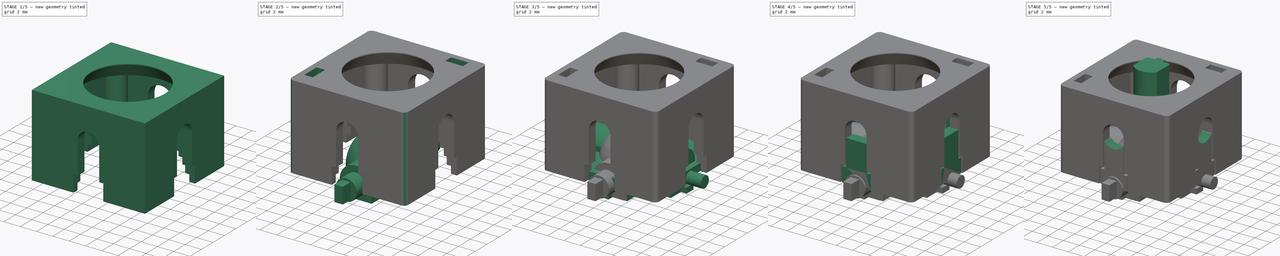
[diagram: build sequence overview — one tinted view per stage of 5, left to right]
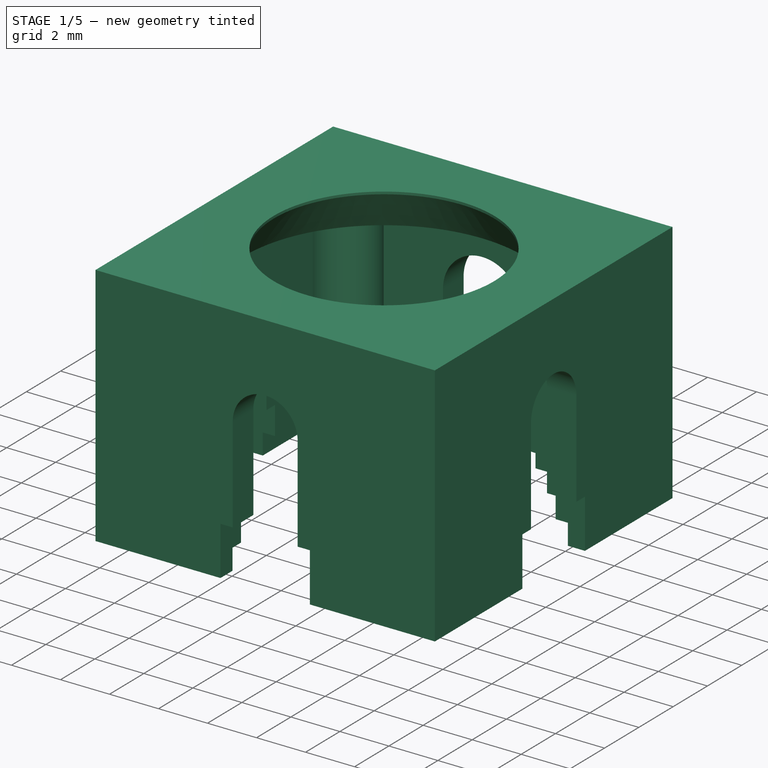
[diagram: stage 1 of 5 — iso view after this stage's code; geometry added in this stage tinted green]
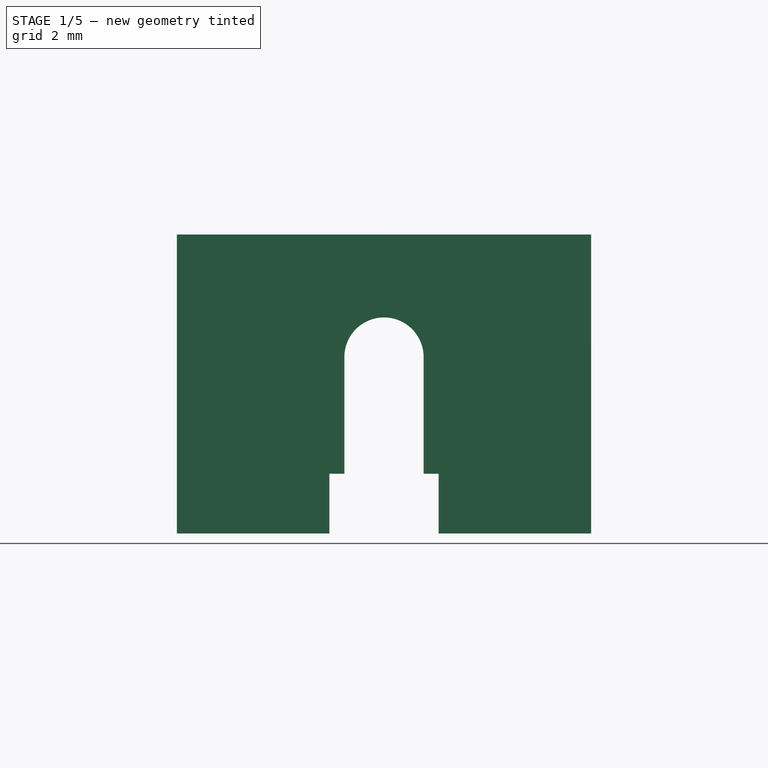
[diagram: stage 1 of 5 — front view after this stage's code; geometry added in this stage tinted green]
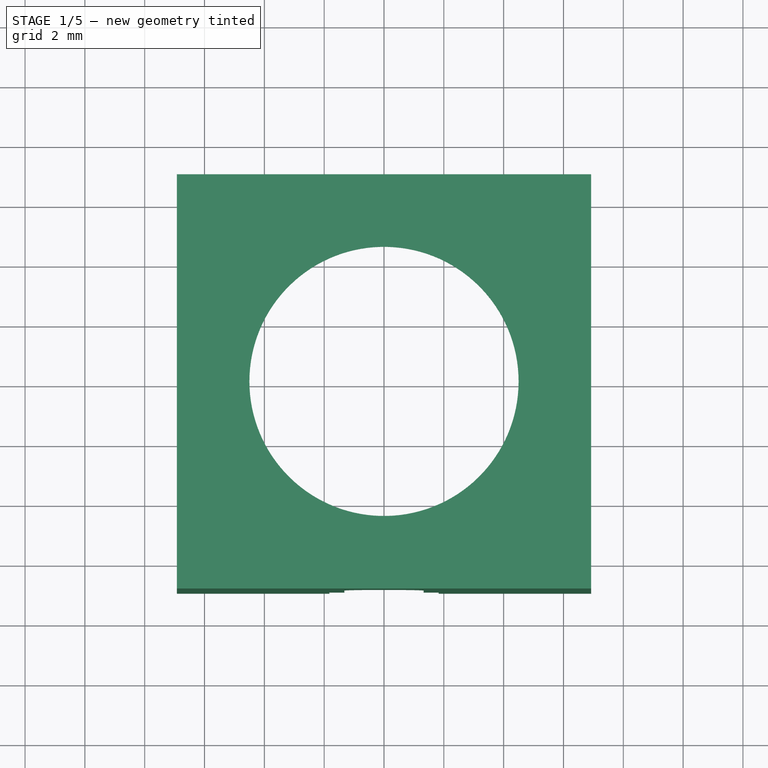
[diagram: stage 1 of 5 — top view after this stage's code; geometry added in this stage tinted green]
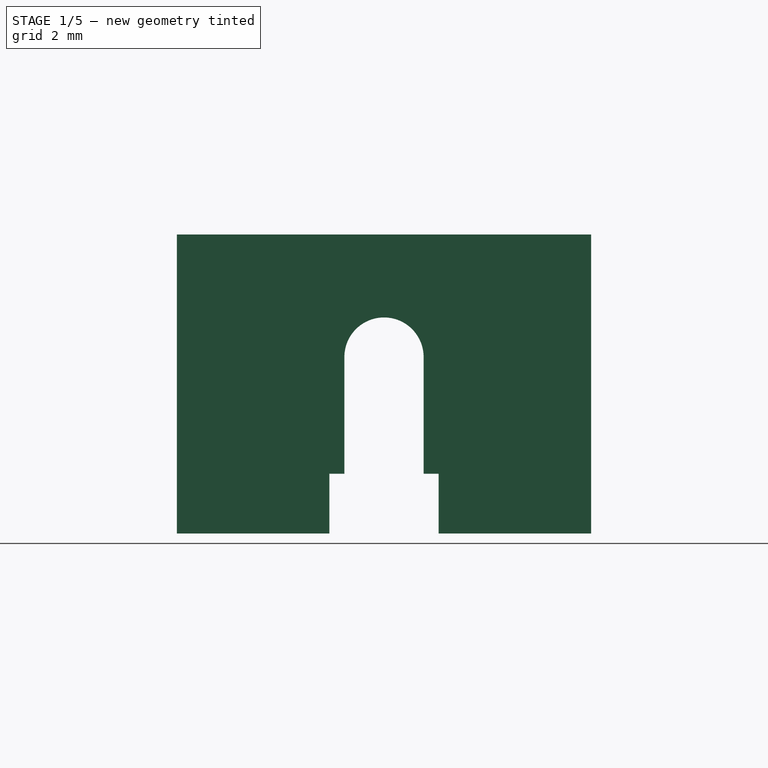
[diagram: stage 1 of 5 — right view after this stage's code; geometry added in this stage tinted green]
FCSTD DOCUMENT  (FreeCAD 1.0R39109 (Git))
Label: NGCC_PARTS_T3
License: All rights reserved
LicenseURL: https://en.wikipedia.org/wiki/All_rights_reserved
objects: Sketcher::SketchObject×55, PartDesign::Pocket×26, PartDesign::Pad×21, PartDesign::Body×6, PartDesign::PolarPattern×5, PartDesign::Groove×4, PartDesign::Revolution×3, PartDesign::Chamfer×2, PartDesign::Mirrored×2, Spreadsheet::Sheet×1, Part::Feature×1, PartDesign::Plane×1, App::VarSet×1, PartDesign::Hole×1, PartDesign::Fillet×1
note: 306 computed .brp shape members not serialized (recipe doc carries the construction recipe); baked Part::Feature solids carry a one-line shape summary decoded from their .brp

FEATURE [PartDesign::Body] Body004  label="GUIDE_Y"
  AllowCompound = false
  Group = -> [Sketch030,Revolution002,Sketch031,Pad016,Sketch032,Pad017,Sketch033,Sketch034,Pad018,Sketch035,Pad019,Sketch036,Pocket011,Pocket012,Sketch037,Sketch038,Pocket013,Groove001,Sketch039,Pocket014,Mirrored001,Sketch040,Groove002,Sketch041,Pocket015]
  Origin = -> Origin004
  Tip = -> Pocket015
FEATURE [Sketcher::SketchObject] Sketch042
  ArcFitTolerance = 1e-06
  AttachmentSupport = -> [XY_Plane005]
  FullyConstrained = true
  MakeInternals = false
  MapMode = 5
  expr: Constraints[10] = .Constraints.LL / 2
  expr: Constraints[11] = .Constraints.LL / 2
  sketch-geometry (4):
    g0: LineSegment StartX=6.925 StartY=6.925 StartZ=0 EndX=-6.925 EndY=6.925 EndZ=0
    g1: LineSegment StartX=-6.925 StartY=6.925 StartZ=0 EndX=-6.925 EndY=-6.925 EndZ=0
    g2: LineSegment StartX=-6.925 StartY=-6.925 StartZ=0 EndX=6.925 EndY=-6.925 EndZ=0
    g3: LineSegment StartX=6.925 StartY=-6.925 StartZ=0 EndX=6.925 EndY=6.925 EndZ=0
  constraints (12):
    c: Coincident(g0,g1)
    c: Coincident(g1,g2)
    c: Coincident(g2,g3)
    c: Coincident(g3,g0)
    c: Horizontal(g0)
    c: Horizontal(g2)
    c: Vertical(g1)
    c: Vertical(g3)
    c: DistanceX(g0,g0) = 13.85  'LL'
    c: Equal(g1,g0)
    c: DistanceX(g0,g-1) = 6.925
    c: DistanceY(g-1,g0) = 6.925
FEATURE [PartDesign::Pad] Pad020
  Direction = (0,0,1)
  Length = 10
  Length2 = 10
  Profile = -> Sketch042
  ReferenceAxis = -> Sketch042 [N_Axis]
  Refine = true
  Suppressed = false
  Type = 0
FEATURE [Sketcher::SketchObject] Sketch043
  ArcFitTolerance = 1e-06
  AttachmentSupport = -> [XY_Plane005]
  FullyConstrained = true
  MakeInternals = false
  MapMode = 5
  expr: Constraints[15] = .Constraints.HO
  expr: Constraints[25] = .Constraints.HO
  expr: Constraints[26] = .Constraints.HO
  expr: Constraints[27] = .Constraints.LL / 2
  expr: Constraints[28] = .Constraints.LL / 2
  expr: Constraints[29] = .Constraints.LL
  sketch-geometry (10):
    g0: LineSegment StartX=-5.725 StartY=4.025 StartZ=0 EndX=-5.725 EndY=-5.725 EndZ=0
    g1: LineSegment StartX=-5.725 StartY=-5.725 StartZ=0 EndX=4.025 EndY=-5.725 EndZ=0
    g2: LineSegment StartX=5.725 StartY=-4.025 StartZ=0 EndX=5.725 EndY=5.725 EndZ=0
    g3: LineSegment StartX=5.725 StartY=5.725 StartZ=0 EndX=-4.025 EndY=5.725 EndZ=0
    g4: ArcOfCircle CenterX=5.225 CenterY=-5.225 CenterZ=0 NormalX=0 NormalY=0 NormalZ=1 AngleXU=0 Radius=1.3 StartAngle=1.17601 EndAngle=3.53638
    g5: LineSegment [constr] StartX=4.025 StartY=-5.725 StartZ=0 EndX=5.725 EndY=-5.725 EndZ=0
    g6: LineSegment [constr] StartX=5.725 StartY=-5.725 StartZ=0 EndX=5.725 EndY=-4.025 EndZ=0
    g7: ArcOfCircle CenterX=-5.225 CenterY=5.225 CenterZ=0 NormalX=0 NormalY=0 NormalZ=1 AngleXU=0 Radius=1.3 StartAngle=4.3176 EndAngle=6.67798
    g8: LineSegment [constr] StartX=-5.725 StartY=4.025 StartZ=0 EndX=-5.725 EndY=5.725 EndZ=0
    g9: LineSegment [constr] StartX=-5.725 StartY=5.725 StartZ=0 EndX=-4.025 EndY=5.725 EndZ=0
  constraints (30):
    c: Coincident(g0,g1)
    c: Coincident(g2,g3)
    c: Vertical(g0)
    c: Vertical(g2)
    c: Horizontal(g1)
    c: Horizontal(g3)
    c: Diameter(g4) = 2.6
    c: Coincident(g1,g4)
    c: Coincident(g2,g4)
    c: Coincident(g5,g1)
    c: Horizontal(g5)
    c: Coincident(g6,g5)
    c: Coincident(g6,g2)
    c: Vertical(g6)
    c: DistanceY(g5,g4) = 0.5  'HO'
    c: DistanceX(g4,g5) = 0.5
    c: Coincident(g7,g3)
    c: Coincident(g0,g7)
    c: Coincident(g8,g0)
    c: Vertical(g8)
    c: Coincident(g9,g8)
    c: Coincident(g9,g3)
    c: Horizontal(g9)
    c: DistanceX(g8,g2) = 11.45  'LL'
    c: Equal(g4,g7)
    c: DistanceX(g8,g7) = 0.5
    c: DistanceY(g7,g8) = 0.5
    c: DistanceX(g8,g-1) = 5.725
    c: DistanceY(g-1,g8) = 5.725
    c: DistanceY(g0,g8) = 11.45
FEATURE [PartDesign::Pocket] Pocket016
  BaseFeature = -> Pad020
  Direction = (0,0,-1)
  Length = 8.2
  Length2 = 5
  Profile = -> Sketch043
  ReferenceAxis = -> Sketch043 [N_Axis]
  Refine = true
  Reversed = true
  Suppressed = false
  Type = 0
FEATURE [Sketcher::SketchObject] Sketch044
  ArcFitTolerance = 1e-06
  AttachmentSupport = -> [XY_Plane005]
  FullyConstrained = true
  MakeInternals = false
  MapMode = 5
  expr: Constraints[11] = .Constraints.LL / 2
  expr: Constraints[9] = .Constraints.LL / 2
  sketch-geometry (4):
    g0: LineSegment StartX=-6.225 StartY=6.225 StartZ=0 EndX=-6.225 EndY=-6.225 EndZ=0
    g1: LineSegment StartX=-6.225 StartY=-6.225 StartZ=0 EndX=6.225 EndY=-6.225 EndZ=0
    g2: LineSegment StartX=6.225 StartY=-6.225 StartZ=0 EndX=6.225 EndY=6.225 EndZ=0
    g3: LineSegment StartX=6.225 StartY=6.225 StartZ=0 EndX=-6.225 EndY=6.225 EndZ=0
  constraints (12):
    c: Coincident(g0,g1)
    c: Coincident(g1,g2)
    c: Coincident(g2,g3)
    c: Coincident(g3,g0)
    c: Vertical(g0)
    c: Vertical(g2)
    c: Horizontal(g1)
    c: Horizontal(g3)
    c: DistanceX(g3,g3) = 12.45  'LL'
    c: DistanceX(g0,g-1) = 6.225
    c: Equal(g3,g0)
    c: DistanceY(g-1,g0) = 6.225
FEATURE [Sketcher::SketchObject] Sketch045
  ArcFitTolerance = 1e-06
  AttachmentSupport = -> [XY_Plane005]
  FullyConstrained = true
  MakeInternals = false
  MapMode = 5
  expr: Constraints[11] = .Constraints.LL / 2
  expr: Constraints[8] = <<Sketch042>>.Constraints.LL / 2
  sketch-geometry (4):
    g0: LineSegment StartX=-1.825 StartY=6.925 StartZ=0 EndX=-1.825 EndY=4.925 EndZ=0
    g1: LineSegment StartX=-1.825 StartY=4.925 StartZ=0 EndX=1.825 EndY=4.925 EndZ=0
    g2: LineSegment StartX=1.825 StartY=4.925 StartZ=0 EndX=1.825 EndY=6.925 EndZ=0
    g3: LineSegment StartX=1.825 StartY=6.925 StartZ=0 EndX=-1.825 EndY=6.925 EndZ=0
  constraints (12):
    c: Coincident(g0,g1)
    c: Coincident(g1,g2)
    c: Coincident(g2,g3)
    c: Coincident(g3,g0)
    c: Vertical(g0)
    c: Vertical(g2)
    c: Horizontal(g1)
    c: Horizontal(g3)
    c: DistanceY(g-1,g0) = 6.925
    c: DistanceX(g3,g3) = 3.65  'LL'
    c: DistanceY(g0,g0) = 2
    c: DistanceX(g0,g-1) = 1.825
FEATURE [Sketcher::SketchObject] Sketch046
  ArcFitTolerance = 1e-06
  AttachmentSupport = -> [XZ_Plane005]
  FullyConstrained = true
  MakeInternals = false
  MapMode = 5
  Placement = pos=(0,0,0) rot=(1,0,0;1.5708rad)
  sketch-geometry (8):
    g0: ArcOfCircle CenterX=0 CenterY=5.9 CenterZ=0 NormalX=0 NormalY=0 NormalZ=1 AngleXU=0 Radius=1.6 StartAngle=0 EndAngle=3.14159
    g1: LineSegment StartX=-1.6 StartY=5.9 StartZ=0 EndX=-1.6 EndY=1.9 EndZ=0
    g2: LineSegment StartX=1.6 StartY=5.9 StartZ=0 EndX=1.6 EndY=1.9 EndZ=0
    g3: LineSegment StartX=1.825 StartY=-0.1 StartZ=0 EndX=-1.825 EndY=-0.1 EndZ=0
    g4: LineSegment StartX=-1.6 StartY=1.9 StartZ=0 EndX=-1.825 EndY=1.9 EndZ=0
    g5: LineSegment StartX=-1.825 StartY=1.9 StartZ=0 EndX=-1.825 EndY=-0.1 EndZ=0
    g6: LineSegment StartX=1.6 StartY=1.9 StartZ=0 EndX=1.825 EndY=1.9 EndZ=0
    g7: LineSegment StartX=1.825 StartY=1.9 StartZ=0 EndX=1.825 EndY=-0.1 EndZ=0
  constraints (25):
    c: PointOnObject(g0,g-2)
    c: Vertical(g1)
    c: Vertical(g2)
    c: Horizontal(g3)
    c: Coincident(g0,g1)
    c: Coincident(g0,g2)
    c: Horizontal(g0,g0)
    c: Horizontal(g0,g0)
    c: Radius(g0) = 1.6
    c: DistanceY(g-1,g0) = 5.9
    c: DistanceY(g3,g1) = 6
    c: Coincident(g5,g4)
    c: Vertical(g5)
    c: Horizontal(g6)
    c: Coincident(g7,g6)
    c: Vertical(g7)
    c: Coincident(g2,g6)
    c: Coincident(g1,g4)
    c: Coincident(g3,g5)
    c: Horizontal(g4)
    c: Coincident(g3,g7)
    c: Horizontal(g2,g1)
    c: Equal(g4,g6)
    c: DistanceX(g3,g3) = 3.65
    c: DistanceY(g5,g5) = 2
FEATURE [Sketcher::SketchObject] Sketch047
  ArcFitTolerance = 1e-06
  AttachmentSupport = -> [XZ_Plane005]
  FullyConstrained = true
  MakeInternals = false
  MapMode = 5
  Placement = pos=(0,0,0) rot=(1,0,0;1.5708rad)
  sketch-geometry (8):
    g0: ArcOfCircle CenterX=0 CenterY=5.9 CenterZ=0 NormalX=0 NormalY=0 NormalZ=1 AngleXU=0 Radius=1.325 StartAngle=0 EndAngle=3.14159
    g1: LineSegment StartX=-1.325 StartY=5.9 StartZ=0 EndX=-1.325 EndY=1.9 EndZ=0
    g2: LineSegment StartX=1.325 StartY=5.9 StartZ=0 EndX=1.325 EndY=1.9 EndZ=0
    g3: LineSegment StartX=1.825 StartY=-0.1 StartZ=0 EndX=-1.825 EndY=-0.1 EndZ=0
    g4: LineSegment StartX=-1.325 StartY=1.9 StartZ=0 EndX=-1.825 EndY=1.9 EndZ=0
    g5: LineSegment StartX=-1.825 StartY=1.9 StartZ=0 EndX=-1.825 EndY=-0.1 EndZ=0
    g6: LineSegment StartX=1.325 StartY=1.9 StartZ=0 EndX=1.825 EndY=1.9 EndZ=0
    g7: LineSegment StartX=1.825 StartY=1.9 StartZ=0 EndX=1.825 EndY=-0.1 EndZ=0
  constraints (25):
    c: PointOnObject(g0,g-2)
    c: Vertical(g1)
    c: Vertical(g2)
    c: Horizontal(g3)
    c: Coincident(g0,g1)
    c: Coincident(g0,g2)
    c: Horizontal(g0,g0)
    c: Horizontal(g0,g0)
    c: Radius(g0) = 1.325
    c: DistanceY(g-1,g0) = 5.9
    c: DistanceY(g3,g1) = 6
    c: Coincident(g5,g4)
    c: Vertical(g5)
    c: Horizontal(g6)
    c: Coincident(g7,g6)
    c: Vertical(g7)
    c: Coincident(g2,g6)
    c: Coincident(g1,g4)
    c: Coincident(g3,g5)
    c: Horizontal(g4)
    c: Coincident(g3,g7)
    c: Horizontal(g2,g1)
    c: Equal(g4,g6)
    c: DistanceX(g3,g3) = 3.65
    c: DistanceY(g5,g5) = 2
FEATURE [Sketcher::SketchObject] Sketch048
  ArcFitTolerance = 1e-06
  AttachmentSupport = -> [YZ_Plane005]
  FullyConstrained = true
  MakeInternals = false
  MapMode = 5
  Placement = pos=(0,0,0) rot=(0.57735,0.57735,0.57735;2.0944rad)
  sketch-geometry (8):
    g0: ArcOfCircle CenterX=0 CenterY=5.9 CenterZ=0 NormalX=0 NormalY=0 NormalZ=1 AngleXU=0 Radius=1.325 StartAngle=0 EndAngle=3.14159
    g1: LineSegment StartX=-1.325 StartY=5.9 StartZ=0 EndX=-1.325 EndY=1.9 EndZ=0
    g2: LineSegment StartX=1.325 StartY=5.9 StartZ=0 EndX=1.325 EndY=1.9 EndZ=0
    g3: LineSegment StartX=1.825 StartY=-0.1 StartZ=0 EndX=-1.825 EndY=-0.1 EndZ=0
    g4: LineSegment StartX=-1.325 StartY=1.9 StartZ=0 EndX=-1.825 EndY=1.9 EndZ=0
    g5: LineSegment StartX=-1.825 StartY=1.9 StartZ=0 EndX=-1.825 EndY=-0.1 EndZ=0
    g6: LineSegment StartX=1.325 StartY=1.9 StartZ=0 EndX=1.825 EndY=1.9 EndZ=0
    g7: LineSegment StartX=1.825 StartY=1.9 StartZ=0 EndX=1.825 EndY=-0.1 EndZ=0
  constraints (25):
    c: PointOnObject(g0,g-2)
    c: Vertical(g1)
    c: Vertical(g2)
    c: Horizontal(g3)
    c: Coincident(g0,g1)
    c: Coincident(g0,g2)
    c: Horizontal(g0,g0)
    c: Horizontal(g0,g0)
    c: Radius(g0) = 1.325
    c: DistanceY(g-1,g0) = 5.9
    c: DistanceY(g3,g1) = 6
    c: Coincident(g5,g4)
    c: Vertical(g5)
    c: Horizontal(g6)
    c: Coincident(g7,g6)
    c: Vertical(g7)
    c: Coincident(g2,g6)
    c: Coincident(g1,g4)
    c: Coincident(g3,g5)
    c: Horizontal(g4)
    c: Coincident(g3,g7)
    c: Horizontal(g2,g1)
    c: Equal(g4,g6)
    c: DistanceX(g3,g3) = 3.65
    c: DistanceY(g5,g5) = 2
FEATURE [Sketcher::SketchObject] Sketch049
  ArcFitTolerance = 1e-06
  AttachmentSupport = -> [YZ_Plane005]
  FullyConstrained = true
  MakeInternals = false
  MapMode = 5
  Placement = pos=(0,0,0) rot=(0.57735,0.57735,0.57735;2.0944rad)
  sketch-geometry (8):
    g0: ArcOfCircle CenterX=0 CenterY=5.9 CenterZ=0 NormalX=0 NormalY=0 NormalZ=1 AngleXU=0 Radius=1.325 StartAngle=0 EndAngle=3.14159
    g1: LineSegment StartX=-1.325 StartY=5.9 StartZ=0 EndX=-1.325 EndY=2 EndZ=0
    g2: LineSegment StartX=1.325 StartY=5.9 StartZ=0 EndX=1.325 EndY=2 EndZ=0
    g3: LineSegment StartX=1.825 StartY=0 StartZ=0 EndX=-1.825 EndY=0 EndZ=0
    g4: LineSegment StartX=-1.325 StartY=2 StartZ=0 EndX=-1.825 EndY=2 EndZ=0
    g5: LineSegment StartX=-1.825 StartY=2 StartZ=0 EndX=-1.825 EndY=0 EndZ=0
    g6: LineSegment StartX=1.325 StartY=2 StartZ=0 EndX=1.825 EndY=2 EndZ=0
    g7: LineSegment StartX=1.825 StartY=2 StartZ=0 EndX=1.825 EndY=0 EndZ=0
  constraints (25):
    c: PointOnObject(g0,g-2)
    c: Vertical(g1)
    c: Vertical(g2)
    c: Horizontal(g3)
    c: Coincident(g0,g1)
    c: Coincident(g0,g2)
    c: Horizontal(g0,g0)
    c: Horizontal(g0,g0)
    c: Radius(g0) = 1.325
    c: DistanceY(g-1,g0) = 5.9
    c: Coincident(g5,g4)
    c: Vertical(g5)
    c: Horizontal(g6)
    c: Coincident(g7,g6)
    c: Vertical(g7)
    c: Coincident(g2,g6)
    c: Coincident(g1,g4)
    c: Coincident(g3,g5)
    c: Horizontal(g4)
    c: Coincident(g3,g7)
    c: Horizontal(g2,g1)
    c: Equal(g4,g6)
    c: DistanceX(g3,g3) = 3.65
    c: DistanceY(g5,g5) = 2
    c: Horizontal(g3,g-1)
FEATURE [Sketcher::SketchObject] Sketch050
  ArcFitTolerance = 1e-06
  AttachmentSupport = -> [XY_Plane005]
  FullyConstrained = true
  MakeInternals = false
  MapMode = 5
  expr: Constraints[1] = .Constraints.LL
  expr: Constraints[4] = .Constraints.LL
  expr: Constraints[5] = .Constraints.LL
  sketch-geometry (2):
    g0: Circle CenterX=-5.225 CenterY=5.225 CenterZ=0 NormalX=0 NormalY=0 NormalZ=1 AngleXU=0 Radius=0.75
    g1: Circle CenterX=5.225 CenterY=-5.225 CenterZ=0 NormalX=0 NormalY=0 NormalZ=1 AngleXU=0 Radius=0.75
  constraints (6):
    c: DistanceY(g1,g-1) = 5.225  'LL'
    c: DistanceX(g-1,g1) = 5.225
    c: Diameter(g1) = 1.5
    c: Equal(g1,g0)
    c: DistanceX(g0,g-1) = 5.225
    c: DistanceY(g-1,g0) = 5.225
FEATURE [Sketcher::SketchObject] Sketch052
  ArcFitTolerance = 1e-06
  AttachmentSupport = -> [XY_Plane005]
  FullyConstrained = true
  MakeInternals = false
  MapMode = 5
  expr: Constraints[22] = .Constraints.HL
  expr: Constraints[23] = .Constraints.LL
  sketch-geometry (8):
    g0: LineSegment StartX=-6.25 StartY=-3.15 StartZ=0 EndX=-6.25 EndY=-5.25 EndZ=0
    g1: LineSegment StartX=-6.25 StartY=-5.25 StartZ=0 EndX=-4.25 EndY=-5.25 EndZ=0
    g2: LineSegment StartX=-4.25 StartY=-5.25 StartZ=0 EndX=-4.25 EndY=-3.15 EndZ=0
    g3: LineSegment StartX=-4.25 StartY=-3.15 StartZ=0 EndX=-6.25 EndY=-3.15 EndZ=0
    g4: LineSegment StartX=3.15 StartY=6.25 StartZ=0 EndX=3.15 EndY=4.25 EndZ=0
    g5: LineSegment StartX=3.15 StartY=4.25 StartZ=0 EndX=5.25 EndY=4.25 EndZ=0
    g6: LineSegment StartX=5.25 StartY=4.25 StartZ=0 EndX=5.25 EndY=6.25 EndZ=0
    g7: LineSegment StartX=5.25 StartY=6.25 StartZ=0 EndX=3.15 EndY=6.25 EndZ=0
  constraints (24):
    c: Coincident(g0,g1)
    c: Coincident(g1,g2)
    c: Coincident(g2,g3)
    c: Coincident(g3,g0)
    c: Vertical(g0)
    c: Vertical(g2)
    c: Horizontal(g1)
    c: Horizontal(g3)
    c: Coincident(g4,g5)
    c: Coincident(g5,g6)
    c: Coincident(g6,g7)
    c: Coincident(g7,g4)
    c: Vertical(g4)
    c: Vertical(g6)
    c: Horizontal(g5)
    c: Horizontal(g7)
    c: DistanceX(g0,g-1) = 6.25  'LL'
    c: DistanceY(g0,g0) = 2.1
    c: DistanceY(g0,g-1) = 5.25  'HL'
    c: DistanceX(g3,g3) = 2
    c: Equal(g3,g4)
    c: Equal(g7,g0)
    c: DistanceX(g-1,g6) = 5.25
    c: DistanceY(g-1,g6) = 6.25
FEATURE [Sketcher::SketchObject] Sketch053
  ArcFitTolerance = 1e-06
  AttachmentOffset = pos=(0,0,4.15) rot=(0,0,1;0rad)
  AttachmentSupport = -> [XY_Plane005]
  FullyConstrained = true
  MakeInternals = false
  MapMode = 5
  Placement = pos=(0,0,4.15) rot=(0,0,1;0rad)
  expr: Constraints[22] = .Constraints.HL
  expr: Constraints[23] = .Constraints.LL
  sketch-geometry (8):
    g0: LineSegment StartX=-6.25 StartY=-3.15 StartZ=0 EndX=-6.25 EndY=-5.25 EndZ=0
    g1: LineSegment StartX=-6.25 StartY=-5.25 StartZ=0 EndX=-5.25 EndY=-5.25 EndZ=0
    g2: LineSegment StartX=-5.25 StartY=-5.25 StartZ=0 EndX=-5.25 EndY=-3.15 EndZ=0
    g3: LineSegment StartX=-5.25 StartY=-3.15 StartZ=0 EndX=-6.25 EndY=-3.15 EndZ=0
    g4: LineSegment StartX=3.15 StartY=6.25 StartZ=0 EndX=3.15 EndY=5.25 EndZ=0
    g5: LineSegment StartX=3.15 StartY=5.25 StartZ=0 EndX=5.25 EndY=5.25 EndZ=0
    g6: LineSegment StartX=5.25 StartY=5.25 StartZ=0 EndX=5.25 EndY=6.25 EndZ=0
    g7: LineSegment StartX=5.25 StartY=6.25 StartZ=0 EndX=3.15 EndY=6.25 EndZ=0
  constraints (24):
    c: Coincident(g0,g1)
    c: Coincident(g1,g2)
    c: Coincident(g2,g3)
    c: Coincident(g3,g0)
    c: Vertical(g0)
    c: Vertical(g2)
    c: Horizontal(g1)
    c: Horizontal(g3)
    c: Coincident(g4,g5)
    c: Coincident(g5,g6)
    c: Coincident(g6,g7)
    c: Coincident(g7,g4)
    c: Vertical(g4)
    c: Vertical(g6)
    c: Horizontal(g5)
    c: Horizontal(g7)
    c: DistanceX(g0,g-1) = 6.25  'LL'
    c: DistanceY(g0,g0) = 2.1
    c: DistanceY(g0,g-1) = 5.25  'HL'
    c: DistanceX(g3,g3) = 1
    c: Equal(g3,g4)
    c: Equal(g7,g0)
    c: DistanceX(g-1,g6) = 5.25
    c: DistanceY(g-1,g6) = 6.25
FEATURE [Sketcher::SketchObject] Sketch054
  ArcFitTolerance = 1e-06
  AttachmentSupport = -> [XY_Plane005]
  FullyConstrained = true
  MakeInternals = false
  MapMode = 5
  sketch-geometry (1):
    g0: Circle CenterX=0 CenterY=0 CenterZ=0 NormalX=0 NormalY=0 NormalZ=1 AngleXU=0 Radius=4.5
  constraints (2):
    c: Coincident(g0,g-1)
    c: Diameter(g0) = 9
FEATURE [PartDesign::Pocket] Pocket025
  BaseFeature = -> Pocket016
  Direction = (0,0,-1)
  Length = 5
  Length2 = 5
  Midplane = true
  Profile = -> Sketch054
  ReferenceAxis = -> Sketch054 [N_Axis]
  Refine = true
  Suppressed = false
  Type = 1
FEATURE [Sketcher::SketchObject] Sketch055
  ArcFitTolerance = 1e-06
  AttachmentSupport = -> [XZ_Plane005]
  FullyConstrained = true
  MakeInternals = false
  MapMode = 5
  Placement = pos=(0,0,0) rot=(1,0,0;1.5708rad)
  sketch-geometry (3):
    g0: LineSegment StartX=4.5 StartY=9.9 StartZ=0 EndX=5.7 EndY=8.2 EndZ=0
    g1: LineSegment StartX=4.5 StartY=9.9 StartZ=0 EndX=4.5 EndY=8.2 EndZ=0
    g2: LineSegment StartX=4.5 StartY=8.2 StartZ=0 EndX=5.7 EndY=8.2 EndZ=0
  constraints (9):
    c: Coincident(g1,g0)
    c: Vertical(g1)
    c: Coincident(g2,g1)
    c: Coincident(g2,g0)
    c: Horizontal(g2)
    c: DistanceX(g-1,g0) = 4.5
    c: DistanceY(g-1,g0) = 9.9
    c: DistanceX(g2,g2) = 1.2
    c: DistanceY(g1,g1) = 1.7
FEATURE [PartDesign::Groove] Groove003
  Angle = 360
  Angle2 = 60
  Axis = (0,2e-16,1)
  Base = (0,0,0)
  BaseFeature = -> Pocket025
  Profile = -> Sketch055
  ReferenceAxis = -> Sketch055 [V_Axis]
  Refine = true
  Suppressed = false
  Type = 0
FEATURE [PartDesign::Pocket] Pocket017
  BaseFeature = -> Groove003
  Direction = (0,0,-1)
  Length = 0.85
  Length2 = 5
  Profile = -> Sketch044
  ReferenceAxis = -> Sketch044 [N_Axis]
  Refine = true
  Reversed = true
  Suppressed = false
  Type = 0
FEATURE [PartDesign::Pocket] Pocket018
  BaseFeature = -> Pocket017
  Direction = (0,0,-1)
  Length = 2
  Length2 = 5
  Profile = -> Sketch045
  ReferenceAxis = -> Sketch045 [N_Axis]
  Refine = true
  Reversed = true
  Suppressed = false
  Type = 0
FEATURE [PartDesign::PolarPattern] PolarPattern004
  Angle = 360
  Axis = -> Sketch045 [N_Axis]
  BaseFeature = -> Pocket018
  Mode = 0
  Occurrences = 4
  Offset = 120
  Originals = -> [Pocket018]
  Refine = true
  Suppressed = false
  TransformMode = 0
FEATURE [PartDesign::Pocket] Pocket019  label="Y+001"
  BaseFeature = -> PolarPattern004
  Direction = (0,1,-2e-16)
  Length = 5
  Length2 = 5
  Profile = -> Sketch046
  ReferenceAxis = -> Sketch046 [N_Axis]
  Refine = true
  Suppressed = false
  Type = 1
FEATURE [PartDesign::Pocket] Pocket020  label="Y-001"
  BaseFeature = -> Pocket019
  Direction = (0,1,-2e-16)
  Length = 5
  Length2 = 5
  Profile = -> Sketch047
  ReferenceAxis = -> Sketch047 [N_Axis]
  Refine = true
  Reversed = true
  Suppressed = false
  Type = 1
FEATURE [PartDesign::Pocket] Pocket021  label="X+001"
  BaseFeature = -> Pocket020
  Direction = (-1,0,0)
  Length = 5
  Length2 = 5
  Profile = -> Sketch048
  ReferenceAxis = -> Sketch048 [N_Axis]
  Refine = true
  Reversed = true
  Suppressed = false
  Type = 1
FEATURE [PartDesign::Pocket] Pocket022  label="X-001"
  BaseFeature = -> Pocket021
  Direction = (-1,0,0)
  Length = 5
  Length2 = 5
  Profile = -> Sketch049
  ReferenceAxis = -> Sketch049 [N_Axis]
  Refine = true
  Suppressed = false
  Type = 1
FEATURE [PartDesign::Hole] Hole
  BaseFeature = -> Pocket022
  CustomThreadClearance = 0
  Depth = 6
  DepthType = 0
  Diameter = 1.5
  DrillForDepth = false
  DrillPoint = 0
  DrillPointAngle = 118
  HoleCutCountersinkAngle = 90
  HoleCutCustomValues = false
  HoleCutDepth = 0
  HoleCutDiameter = 6.1
  HoleCutType = 0
  ModelThread = false
  Profile = -> Sketch050
  Refine = true
  Reversed = true
  Suppressed = false
  Tapered = false
  TaperedAngle = 90
  ThreadClass = 0
  ThreadDepth = 6
  ThreadDepthType = 0
  ThreadDirection = 0
  ThreadFit = 0
  ThreadSize = 0
  ThreadType = 0
  Threaded = false
  UseCustomThreadClearance = false
FEATURE [PartDesign::Pocket] Pocket023
  BaseFeature = -> Hole
  Direction = (0,0,-1)
  Length = 3
  Length2 = 5
  Profile = -> Sketch052
  ReferenceAxis = -> Sketch052 [N_Axis]
  Refine = true
  Reversed = true
  Suppressed = false
  Type = 0
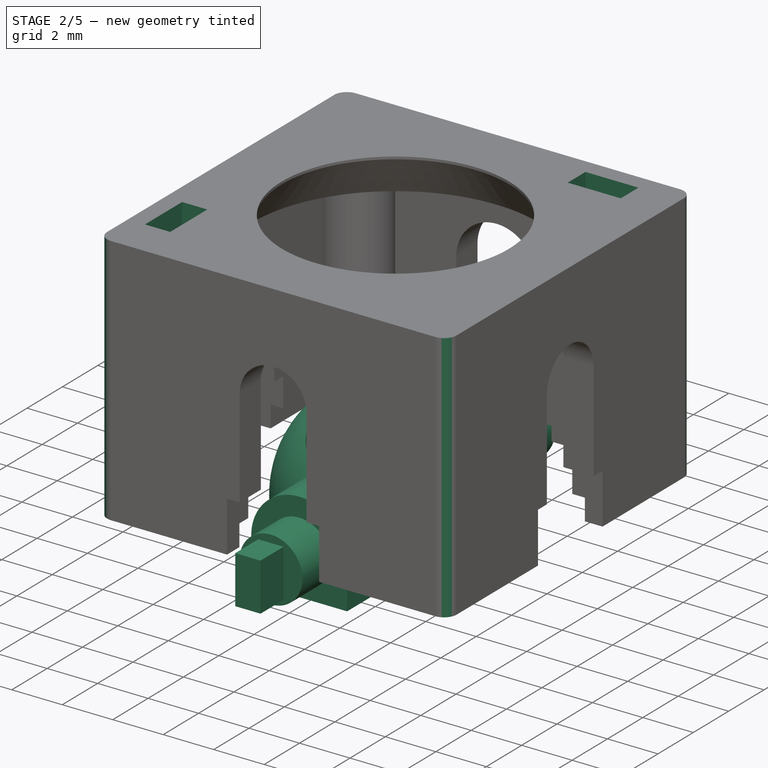
[diagram: stage 2 of 5 — iso view after this stage's code; geometry added in this stage tinted green]
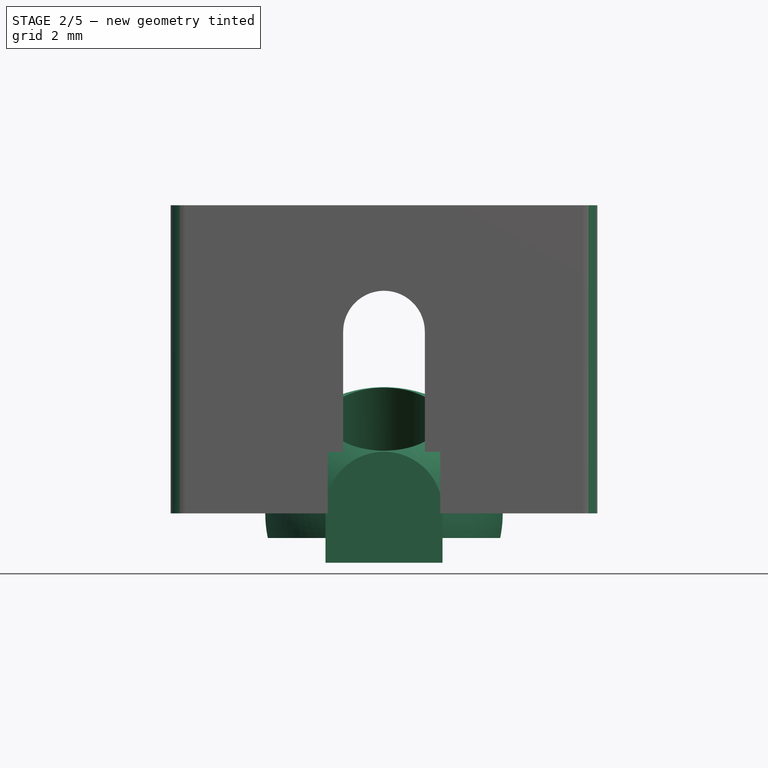
[diagram: stage 2 of 5 — front view after this stage's code; geometry added in this stage tinted green]
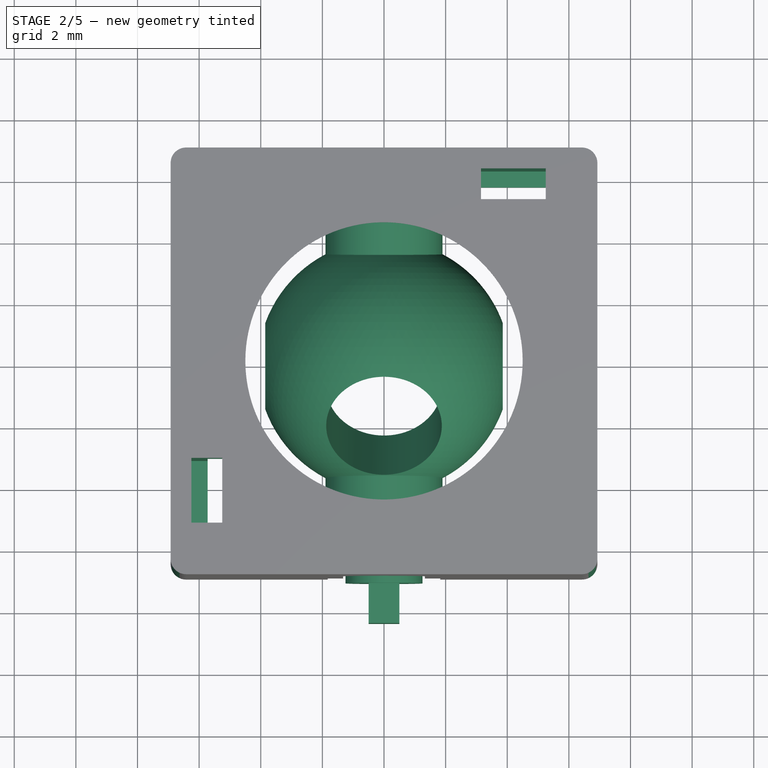
[diagram: stage 2 of 5 — top view after this stage's code; geometry added in this stage tinted green]
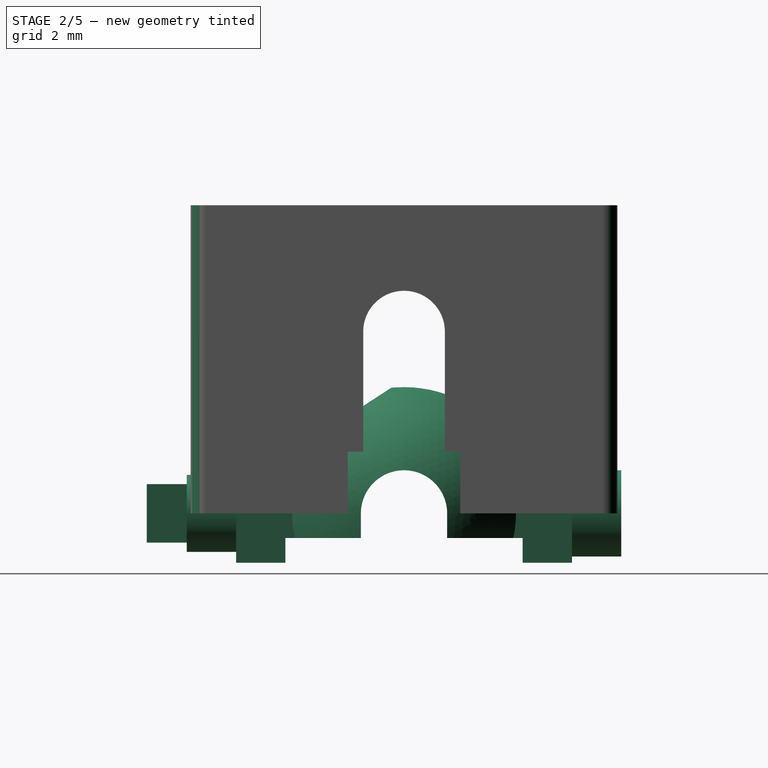
[diagram: stage 2 of 5 — right view after this stage's code; geometry added in this stage tinted green]
FEATURE [PartDesign::Body] Body003  label="GUIDE_X"
  AllowCompound = false
  Group = -> [Sketch026,Revolution001,Sketch027,Pad014,Sketch028,Sketch029,Pad015,Pocket010]
  Origin = -> Origin003
  Tip = -> Pad015
FEATURE [Sketcher::SketchObject] Sketch030
  ArcFitTolerance = 1e-06
  AttachmentSupport = -> [XY_Plane004]
  FullyConstrained = true
  MakeInternals = false
  MapMode = 5
  sketch-geometry (2):
    g0: ArcOfCircle CenterX=-1.5e-15 CenterY=0 CenterZ=0 NormalX=0 NormalY=0 NormalZ=1 AngleXU=0 Radius=4.1 StartAngle=4.71239 EndAngle=7.85398
    g1: LineSegment StartX=-1.5e-15 StartY=4.1 StartZ=0 EndX=-1.5e-15 EndY=-4.1 EndZ=0
  constraints (6):
    c: Coincident(g0,g-1)
    c: Vertical(g1)
    c: Coincident(g0,g1)
    c: Coincident(g0,g1)
    c: Vertical(g0,g0)
    c: Radius(g0) = 4.1
FEATURE [PartDesign::Revolution] Revolution002
  Angle = 360
  Angle2 = 60
  Axis = (0,1,0)
  Base = (0,0,0)
  Profile = -> Sketch030
  ReferenceAxis = -> Sketch030 [V_Axis]
  Refine = true
  Reversed = true
  Suppressed = false
  Type = 0
FEATURE [Sketcher::SketchObject] Sketch031
  ArcFitTolerance = 1e-06
  AttachmentSupport = -> [XZ_Plane004]
  FullyConstrained = true
  MakeInternals = false
  MapMode = 5
  Placement = pos=(0,0,0) rot=(1,0,0;1.5708rad)
  sketch-geometry (1):
    g0: Circle CenterX=0 CenterY=0 CenterZ=0 NormalX=0 NormalY=0 NormalZ=1 AngleXU=0 Radius=1.4
  constraints (2):
    c: Coincident(g0,g-1)
    c: Diameter(g0) = 2.8
FEATURE [PartDesign::Pad] Pad016
  BaseFeature = -> Revolution002
  Direction = (0,-1,2e-16)
  Length = 7.05
  Length2 = 10
  Profile = -> Sketch031
  ReferenceAxis = -> Sketch031 [N_Axis]
  Refine = true
  Reversed = true
  Suppressed = false
  Type = 0
FEATURE [Sketcher::SketchObject] Sketch032
  ArcFitTolerance = 1e-06
  AttachmentSupport = -> [XZ_Plane004]
  FullyConstrained = true
  MakeInternals = false
  MapMode = 5
  Placement = pos=(0,0,0) rot=(1,0,0;1.5708rad)
  sketch-geometry (1):
    g0: Circle CenterX=0 CenterY=0 CenterZ=0 NormalX=0 NormalY=0 NormalZ=1 AngleXU=0 Radius=1.25
  constraints (2):
    c: Coincident(g0,g-1)
    c: Diameter(g0) = 2.5
FEATURE [PartDesign::Pad] Pad017
  BaseFeature = -> Pad016
  Direction = (0,-1,2e-16)
  Length = 7.05
  Length2 = 10
  Profile = -> Sketch032
  ReferenceAxis = -> Sketch032 [N_Axis]
  Refine = true
  Suppressed = false
  Type = 0
  expr: Length = <<Pad016>>.Length
FEATURE [Sketcher::SketchObject] Sketch033
  ArcFitTolerance = 1e-06
  AttachmentSupport = -> [YZ_Plane004]
  FullyConstrained = true
  MakeInternals = false
  MapMode = 5
  Placement = pos=(0,0,0) rot=(0.57735,0.57735,0.57735;2.0944rad)
  expr: Constraints[11] = .Constraints.LL / 2
  sketch-geometry (4):
    g0: LineSegment StartX=-3.85 StartY=-0.8 StartZ=0 EndX=-3.85 EndY=-4.8 EndZ=0
    g1: LineSegment StartX=-3.85 StartY=-4.8 StartZ=0 EndX=3.85 EndY=-4.8 EndZ=0
    g2: LineSegment StartX=3.85 StartY=-4.8 StartZ=0 EndX=3.85 EndY=-0.8 EndZ=0
    g3: LineSegment StartX=3.85 StartY=-0.8 StartZ=0 EndX=-3.85 EndY=-0.8 EndZ=0
  constraints (12):
    c: Coincident(g0,g1)
    c: Coincident(g1,g2)
    c: Coincident(g2,g3)
    c: Coincident(g3,g0)
    c: Vertical(g0)
    c: Vertical(g2)
    c: Horizontal(g1)
    c: Horizontal(g3)
    c: DistanceY(g0,g-1) = 0.8
    c: DistanceY(g0,g0) = 4
    c: DistanceX(g1,g1) = 7.7  'LL'
    c: DistanceX(g0,g-1) = 3.85
FEATURE [Sketcher::SketchObject] Sketch034
  ArcFitTolerance = 1e-06
  AttachmentSupport = -> [XZ_Plane004]
  FullyConstrained = true
  MakeInternals = false
  MapMode = 5
  Placement = pos=(0,0,0) rot=(1,0,0;1.5708rad)
  sketch-geometry (4):
    g0: LineSegment StartX=-1.9 StartY=-1.6 StartZ=0 EndX=1.9 EndY=-1.6 EndZ=0
    g1: LineSegment StartX=1.9 StartY=-1.6 StartZ=0 EndX=1.9 EndY=0.1 EndZ=0
    g2: LineSegment StartX=-1.9 StartY=0.1 StartZ=0 EndX=-1.9 EndY=-1.6 EndZ=0
    g3: ArcOfCircle CenterX=0 CenterY=0.1 CenterZ=0 NormalX=0 NormalY=0 NormalZ=1 AngleXU=0 Radius=1.9 StartAngle=3.0962e-12 EndAngle=3.14159
  constraints (13):
    c: Coincident(g0,g1)
    c: Coincident(g2,g0)
    c: Horizontal(g0)
    c: Vertical(g1)
    c: Vertical(g2)
    c: Coincident(g3,g1)
    c: Coincident(g2,g3)
    c: Horizontal(g2,g1)
    c: Vertical(g3,g-1)
    c: DistanceY(g0,g-1) = 1.6
    c: DistanceX(g0,g0) = 3.8
    c: Distance(g3,g-1) = 0.1
    c: DistanceY(g-1,g2) = 0.1
FEATURE [PartDesign::Pad] Pad018
  BaseFeature = -> Pad017
  Direction = (0,-1,2e-16)
  Length = 10.9
  Length2 = 10
  Midplane = true
  Profile = -> Sketch034
  ReferenceAxis = -> Sketch034 [N_Axis]
  Refine = true
  Suppressed = false
  Type = 0
FEATURE [Sketcher::SketchObject] Sketch035
  ArcFitTolerance = 1e-06
  AttachmentSupport = -> [XZ_Plane004]
  FullyConstrained = true
  MakeInternals = false
  MapMode = 5
  Placement = pos=(0,0,0) rot=(1,0,0;1.5708rad)
  expr: Constraints[10] = .Constraints.LL / 2
  expr: Constraints[11] = .Constraints.HH / 2
  sketch-geometry (4):
    g0: LineSegment StartX=-0.5 StartY=0.95 StartZ=0 EndX=-0.5 EndY=-0.95 EndZ=0
    g1: LineSegment StartX=-0.5 StartY=-0.95 StartZ=0 EndX=0.5 EndY=-0.95 EndZ=0
    g2: LineSegment StartX=0.5 StartY=-0.95 StartZ=0 EndX=0.5 EndY=0.95 EndZ=0
    g3: LineSegment StartX=0.5 StartY=0.95 StartZ=0 EndX=-0.5 EndY=0.95 EndZ=0
  constraints (12):
    c: Coincident(g0,g1)
    c: Coincident(g1,g2)
    c: Coincident(g2,g3)
    c: Coincident(g3,g0)
    c: Vertical(g0)
    c: Vertical(g2)
    c: Horizontal(g1)
    c: Horizontal(g3)
    c: DistanceX(g3,g3) = 1  'LL'
    c: DistanceY(g0,g0) = 1.9  'HH'
    c: DistanceX(g0,g-1) = 0.5
    c: DistanceY(g-1,g0) = 0.95
FEATURE [PartDesign::Pad] Pad019
  BaseFeature = -> Pad018
  Direction = (0,-1,2e-16)
  Length = 8.35
  Length2 = 10
  Profile = -> Sketch035
  ReferenceAxis = -> Sketch035 [N_Axis]
  Refine = true
  Suppressed = false
  Type = 0
FEATURE [PartDesign::Pocket] Pocket011
  BaseFeature = -> Pad019
  Direction = (-1,0,0)
  Length = 5
  Length2 = 5
  Midplane = true
  Profile = -> Sketch033
  ReferenceAxis = -> Sketch033 [N_Axis]
  Refine = true
  Suppressed = false
  Type = 1
FEATURE [Sketcher::SketchObject] Sketch036
  ArcFitTolerance = 1e-06
  AttachmentSupport = -> [YZ_Plane004]
  FullyConstrained = true
  MakeInternals = false
  MapMode = 5
  Placement = pos=(0,0,0) rot=(0.57735,0.57735,0.57735;2.0944rad)
  sketch-geometry (4):
    g0: ArcOfCircle CenterX=0 CenterY=0 CenterZ=0 NormalX=0 NormalY=0 NormalZ=1 AngleXU=0 Radius=1.4 StartAngle=0 EndAngle=3.14159
    g1: LineSegment StartX=-1.4 StartY=0 StartZ=0 EndX=-1.4 EndY=-3 EndZ=0
    g2: LineSegment StartX=-1.4 StartY=-3 StartZ=0 EndX=1.4 EndY=-3 EndZ=0
    g3: LineSegment StartX=1.4 StartY=-3 StartZ=0 EndX=1.4 EndY=0 EndZ=0
  constraints (12):
    c: Coincident(g0,g-1)
    c: Diameter(g0) = 2.8
    c: Vertical(g1)
    c: Coincident(g2,g1)
    c: Horizontal(g2)
    c: Coincident(g3,g2)
    c: Vertical(g3)
    c: Horizontal(g0,g1)
    c: Horizontal(g1,g3)
    c: Coincident(g0,g1)
    c: Coincident(g0,g3)
    c: DistanceY(g1,g1) = 3
FEATURE [PartDesign::Pocket] Pocket012
  BaseFeature = -> Pocket011
  Direction = (-1,0,0)
  Length = 5
  Length2 = 5
  Midplane = true
  Profile = -> Sketch036
  ReferenceAxis = -> Sketch036 [N_Axis]
  Refine = true
  Suppressed = false
  Type = 1
FEATURE [Sketcher::SketchObject] Sketch037
  ArcFitTolerance = 1e-06
  AttachmentSupport = -> [XY_Plane004]
  FullyConstrained = true
  MakeInternals = false
  MapMode = 5
  expr: Constraints[5] = VarSet.StemSphereRadius
  sketch-geometry (2):
    g0: ArcOfCircle CenterX=-3.4e-15 CenterY=0 CenterZ=0 NormalX=0 NormalY=0 NormalZ=1 AngleXU=0 Radius=2.25 StartAngle=4.71239 EndAngle=7.85398
    g1: LineSegment StartX=-3.4e-15 StartY=2.25 StartZ=0 EndX=-3.4e-15 EndY=-2.25 EndZ=0
  constraints (6):
    c: Coincident(g0,g-1)
    c: Vertical(g1)
    c: Coincident(g0,g1)
    c: Coincident(g0,g1)
    c: Vertical(g0,g0)
    c: Radius(g0) = 2.25
FEATURE [App::VarSet] VarSet  label="Dimensions"
  StemDiameter = 3.75
  StemSphereRadius = 2.25
FEATURE [Sketcher::SketchObject] Sketch038
  ArcFitTolerance = 1e-06
  AttachmentSupport = -> [XY_Plane004]
  FullyConstrained = true
  MakeInternals = false
  MapMode = 5
  expr: Constraints[0] = VarSet.StemSphereRadius * 2
  sketch-geometry (1):
    g0: Circle CenterX=0 CenterY=0 CenterZ=0 NormalX=0 NormalY=0 NormalZ=1 AngleXU=0 Radius=2.25
  constraints (2):
    c: Diameter(g0) = 4.5
    c: Coincident(g0,g-1)
FEATURE [PartDesign::Pocket] Pocket013
  BaseFeature = -> Pocket012
  Direction = (0,0,-1)
  Length = 5
  Length2 = 5
  Profile = -> Sketch038
  ReferenceAxis = -> Sketch038 [N_Axis]
  Refine = true
  Suppressed = false
  Type = 1
FEATURE [PartDesign::Groove] Groove001
  Angle = 180
  Angle2 = 60
  Axis = (0,1,0)
  Base = (0,0,0)
  BaseFeature = -> Pocket013
  Profile = -> Sketch037
  ReferenceAxis = -> Sketch037 [V_Axis]
  Refine = true
  Reversed = true
  Suppressed = false
  Type = 0
FEATURE [Sketcher::SketchObject] Sketch039
  ArcFitTolerance = 1e-06
  AttachmentOffset = pos=(0,0,0) rot=(1,0,0;0.575959rad)
  AttachmentSupport = -> [XY_Plane004]
  FullyConstrained = true
  MakeInternals = false
  MapMode = 5
  Placement = pos=(0,0,0) rot=(1,0,0;0.575959rad)
  expr: Constraints[1] = VarSet.StemDiameter
  sketch-geometry (1):
    g0: Circle CenterX=0 CenterY=0 CenterZ=0 NormalX=0 NormalY=0 NormalZ=1 AngleXU=0 Radius=1.875
  constraints (2):
    c: Coincident(g0,g-1)
    c: Diameter(g0) = 3.75
FEATURE [PartDesign::Pocket] Pocket014
  BaseFeature = -> Groove001
  Direction = (0,0.544639,-0.838671)
  Length = 5
  Length2 = 5
  Profile = -> Sketch039
  ReferenceAxis = -> Sketch039 [N_Axis]
  Refine = true
  Reversed = true
  Suppressed = false
  Type = 1
FEATURE [PartDesign::Pocket] Pocket024
  BaseFeature = -> Pocket023
  Direction = (0,0,-1)
  Length = 2
  Length2 = 5
  Profile = -> Sketch053
  ReferenceAxis = -> Sketch053 [N_Axis]
  Refine = true
  Reversed = true
  Suppressed = false
  Type = 1
FEATURE [PartDesign::Fillet] Fillet
  Base = -> Pocket024 [Edge10,Edge52,Edge73,Edge12]
  BaseFeature = -> Pocket024
  Radius = 0.5
  Refine = true
  SupportTransform = false
  Suppressed = false
  UseAllEdges = false
FEATURE [PartDesign::Chamfer] Chamfer001
  Angle = 45
  Base = -> Fillet [Edge228,Edge94]
  BaseFeature = -> Fillet
  ChamferType = 1
  FlipDirection = false
  Refine = true
  Size = 0.8
  Size2 = 0.5
  SupportTransform = false
  Suppressed = false
  UseAllEdges = false
FEATURE [PartDesign::Body] Body005  label="TOP-HOUSING"
  AllowCompound = false
  Group = -> [Sketch042,Pad020,Sketch043,Pocket016,Sketch044,Sketch054,Pocket025,Sketch055,Groove003,Pocket017,Sketch045,Pocket018,PolarPattern004,Sketch046,Pocket019,Sketch047,Pocket020,Sketch048,Pocket021,Sketch049,Pocket022,Sketch050,Hole,Sketch052,Pocket023,Sketch053,Pocket024,Fillet,Chamfer001]
  Origin = -> Origin005
  Placement = pos=(0,0,-5.9) rot=(0,0,1;0rad)
  Tip = -> Chamfer001
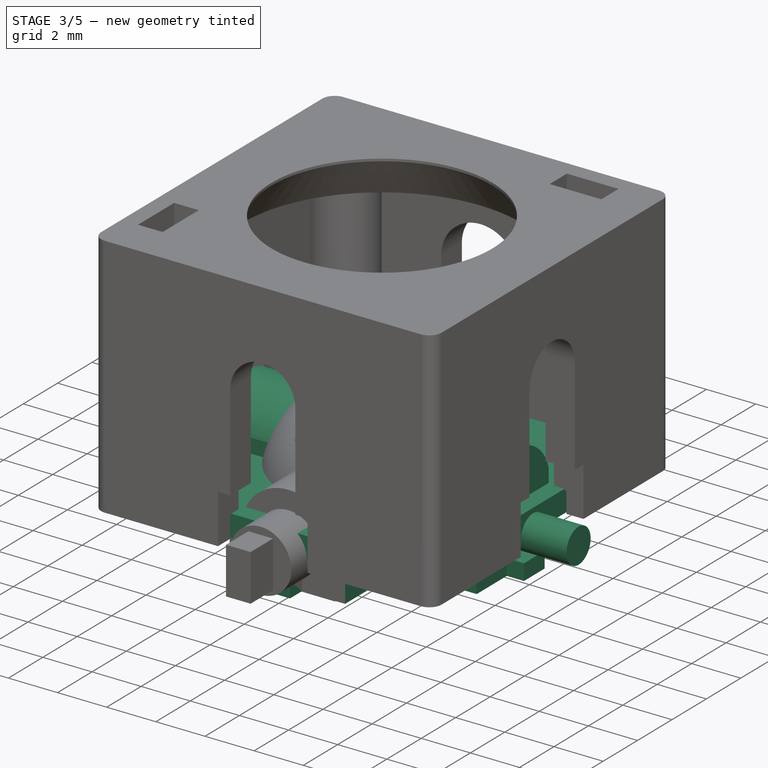
[diagram: stage 3 of 5 — iso view after this stage's code; geometry added in this stage tinted green]
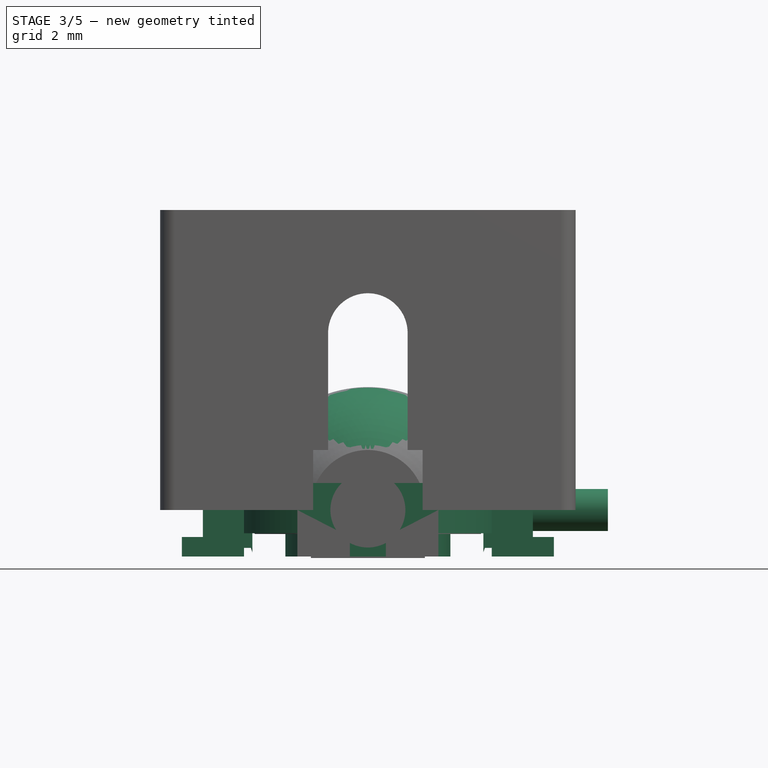
[diagram: stage 3 of 5 — front view after this stage's code; geometry added in this stage tinted green]
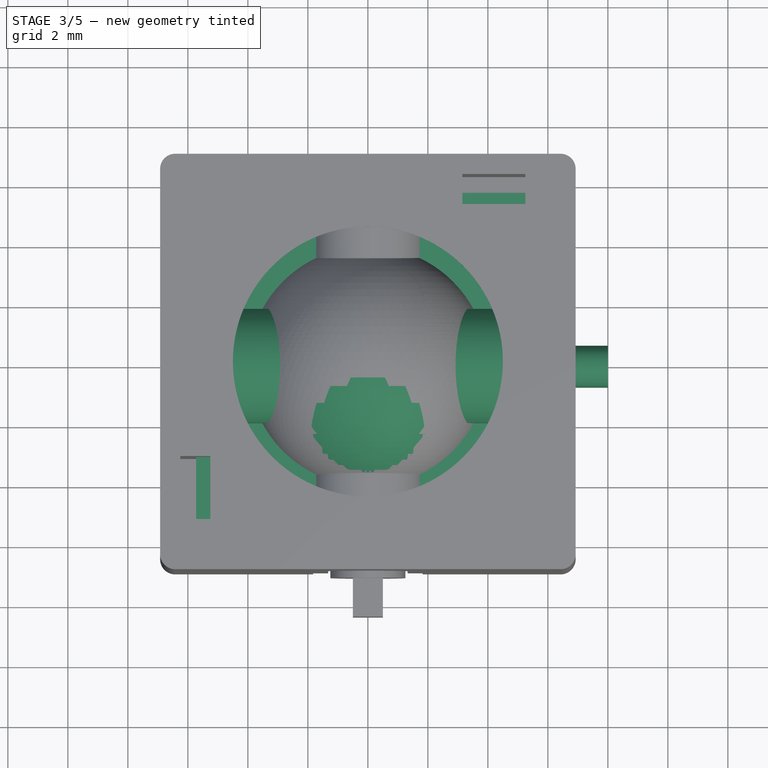
[diagram: stage 3 of 5 — top view after this stage's code; geometry added in this stage tinted green]
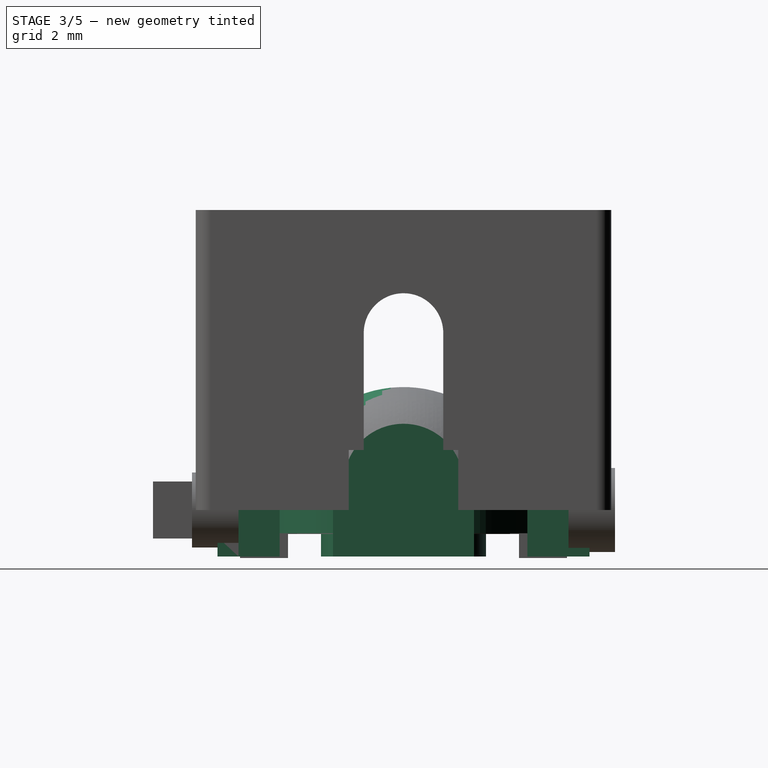
[diagram: stage 3 of 5 — right view after this stage's code; geometry added in this stage tinted green]
FEATURE [PartDesign::Body] Body  label="STEM"
  AllowCompound = false
  Group = -> [Sketch,Sketch001,Pad,Sketch002,Sketch003,Pad002,Pad001,Sketch004,Pocket,Revolution,Sketch005,Pad003,Sketch006,Pocket001]
  Origin = -> Origin
  Tip = -> Pocket001
FEATURE [Part::Feature] T3_NGCC_PARTS_housing001
  Placement = pos=(-6.92,-6.92,-5.96) rot=(0,0,1;0rad)
  shape: bbox 13.85 x 13.85 x 10 mm, 3064 faces, 0 solids (baked)
FEATURE [Sketcher::SketchObject] Sketch007
  ArcFitTolerance = 1e-06
  AttachmentSupport = -> [XY_Plane001]
  FullyConstrained = true
  MakeInternals = false
  MapMode = 5
  expr: Constraints[10] = .Constraints.HH / 2
  expr: Constraints[11] = .Constraints.LL / 2
  sketch-geometry (4):
    g0: LineSegment StartX=-6.15 StartY=6.15 StartZ=0 EndX=-6.15 EndY=-6.15 EndZ=0
    g1: LineSegment StartX=-6.15 StartY=-6.15 StartZ=0 EndX=6.15 EndY=-6.15 EndZ=0
    g2: LineSegment StartX=6.15 StartY=-6.15 StartZ=0 EndX=6.15 EndY=6.15 EndZ=0
    g3: LineSegment StartX=6.15 StartY=6.15 StartZ=0 EndX=-6.15 EndY=6.15 EndZ=0
  constraints (12):
    c: Coincident(g0,g1)
    c: Coincident(g1,g2)
    c: Coincident(g2,g3)
    c: Coincident(g3,g0)
    c: Vertical(g0)
    c: Vertical(g2)
    c: Horizontal(g1)
    c: Horizontal(g3)
    c: DistanceY(g0,g0) = 12.3  'LL'
    c: DistanceX(g3,g3) = 12.3  'HH'
    c: DistanceX(g0,g-1) = 6.15
    c: DistanceY(g-1,g0) = 6.15
FEATURE [PartDesign::Pad] Pad004
  Direction = (0,0,1)
  Length = 0.9
  Length2 = 10
  Profile = -> Sketch007
  ReferenceAxis = -> Sketch007 [N_Axis]
  Refine = true
  Suppressed = false
  Type = 0
FEATURE [PartDesign::Body] Body001  label="BOTTOM-HOUSING"
  AllowCompound = false
  Group = -> [DatumPlane,Sketch007,Pad004,Sketch008,Sketch012,Pocket003,Pad005,Groove,Chamfer,Sketch009,Pocket002,Sketch010,Sketch011,Sketch013,Pad007,Pad008,Mirrored,Sketch014,Sketch015,Pad009,Sketch016,Sketch021,Pad010,PolarPattern002,Pad006,PolarPattern,Pocket004,Sketch017,Pocket005,Sketch018,Pocket006,Sketch019,Pocket007,Sketch020,Pocket008,PolarPattern001]
  Origin = -> Origin001
  Placement = pos=(0,0,-5.9) rot=(0,0,1;0rad)
  Tip = -> PolarPattern001
FEATURE [Sketcher::SketchObject] Sketch022
  ArcFitTolerance = 1e-06
  AttachmentSupport = -> [XY_Plane002]
  FullyConstrained = true
  MakeInternals = false
  MapMode = 5
  sketch-geometry (2):
    g0: Circle CenterX=0 CenterY=0 CenterZ=0 NormalX=0 NormalY=0 NormalZ=1 AngleXU=0 Radius=2.25
    g1: Circle CenterX=0 CenterY=0 CenterZ=0 NormalX=0 NormalY=0 NormalZ=1 AngleXU=0 Radius=4.75
  constraints (5):
    c: Coincident(g0,g-1)
    c: Coincident(g1,g0)
    c: Diameter(g1) = 9.5  'DB'
    c: Distance(g0,g1) = 2.5
    c: Diameter(g0) = 4.5  'DS'
FEATURE [PartDesign::Pad] Pad011
  Direction = (0,0,1)
  Length = 1.55
  Length2 = 10
  Profile = -> Sketch022
  ReferenceAxis = -> Sketch022 [N_Axis]
  Refine = true
  Reversed = true
  Suppressed = false
  Type = 0
FEATURE [Sketcher::SketchObject] Sketch023
  ArcFitTolerance = 1e-06
  AttachmentSupport = -> [XY_Plane002]
  FullyConstrained = true
  MakeInternals = false
  MapMode = 5
  expr: Constraints[10] = .Constraints.LL / 2
  sketch-geometry (4):
    g0: LineSegment StartX=-2.35 StartY=-5.5 StartZ=0 EndX=2.35 EndY=-5.5 EndZ=0
    g1: LineSegment StartX=2.35 StartY=-5.5 StartZ=0 EndX=2.35 EndY=-3.5 EndZ=0
    g2: LineSegment StartX=2.35 StartY=-3.5 StartZ=0 EndX=-2.35 EndY=-3.5 EndZ=0
    g3: LineSegment StartX=-2.35 StartY=-3.5 StartZ=0 EndX=-2.35 EndY=-5.5 EndZ=0
  constraints (12):
    c: Coincident(g0,g1)
    c: Coincident(g1,g2)
    c: Coincident(g2,g3)
    c: Coincident(g3,g0)
    c: Horizontal(g0)
    c: Horizontal(g2)
    c: Vertical(g1)
    c: Vertical(g3)
    c: DistanceX(g0,g0) = 4.7  'LL'
    c: DistanceY(g0,g-1) = 5.5  'LD'
    c: DistanceX(g0,g-1) = 2.35
    c: DistanceY(g3,g3) = 2
FEATURE [PartDesign::Pad] Pad012
  BaseFeature = -> Pad011
  Direction = (0,0,1)
  Length = 1.55
  Length2 = 10
  Profile = -> Sketch023
  ReferenceAxis = -> Sketch023 [N_Axis]
  Refine = true
  Reversed = true
  Suppressed = false
  Type = 0
  expr: Length = <<Pad011>>.Length
FEATURE [Sketcher::SketchObject] Sketch024
  ArcFitTolerance = 1e-06
  AttachmentOffset = pos=(0,0,-1.55) rot=(0,0,1;0rad)
  AttachmentSupport = -> [XY_Plane002]
  FullyConstrained = true
  MakeInternals = false
  MapMode = 5
  Placement = pos=(0,0,-1.55) rot=(0,0,1;0rad)
  expr: .AttachmentOffset.Base.z = -<<Pad012>>.Length
  expr: Constraints[2] = <<Sketch022>>.Constraints.DS + 1 mm
  expr: Constraints[3] = <<Sketch022>>.Constraints.DB
  sketch-geometry (2):
    g0: Circle CenterX=0 CenterY=0 CenterZ=0 NormalX=0 NormalY=0 NormalZ=1 AngleXU=0 Radius=4.75
    g1: Circle CenterX=0 CenterY=0 CenterZ=0 NormalX=0 NormalY=0 NormalZ=1 AngleXU=0 Radius=2.75
  constraints (4):
    c: Coincident(g0,g-1)
    c: Coincident(g1,g0)
    c: Diameter(g1) = 5.5
    c: Diameter(g0) = 9.5
FEATURE [Sketcher::SketchObject] Sketch025
  ArcFitTolerance = 1e-06
  AttachmentOffset = pos=(0,0,-1.55) rot=(0,0,1;0rad)
  AttachmentSupport = -> [XY_Plane002]
  FullyConstrained = true
  MakeInternals = false
  MapMode = 5
  Placement = pos=(0,0,-1.55) rot=(0,0,1;0rad)
  expr: .AttachmentOffset.Base.z = -<<Pad011>>.Length
  expr: Constraints[10] = .Constraints.LL / 2
  expr: Constraints[8] = <<Sketch023>>.Constraints.LD
  sketch-geometry (4):
    g0: LineSegment StartX=-0.6 StartY=-5.5 StartZ=0 EndX=-0.6 EndY=-6.2 EndZ=0
    g1: LineSegment StartX=-0.6 StartY=-6.2 StartZ=0 EndX=0.6 EndY=-6.2 EndZ=0
    g2: LineSegment StartX=0.6 StartY=-6.2 StartZ=0 EndX=0.6 EndY=-5.5 EndZ=0
    g3: LineSegment StartX=0.6 StartY=-5.5 StartZ=0 EndX=-0.6 EndY=-5.5 EndZ=0
  constraints (12):
    c: Coincident(g0,g1)
    c: Coincident(g1,g2)
    c: Coincident(g2,g3)
    c: Coincident(g3,g0)
    c: Vertical(g0)
    c: Vertical(g2)
    c: Horizontal(g1)
    c: Horizontal(g3)
    c: DistanceY(g0,g-1) = 5.5
    c: DistanceX(g1,g1) = 1.2  'LL'
    c: DistanceX(g0,g-1) = 0.6
    c: DistanceY(g0,g0) = 0.7
FEATURE [PartDesign::Pad] Pad013
  BaseFeature = -> Pad012
  Direction = (0,0,1)
  Length = 0.65
  Length2 = 10
  Profile = -> Sketch025
  ReferenceAxis = -> Sketch025 [N_Axis]
  Refine = true
  Suppressed = false
  Type = 0
FEATURE [PartDesign::PolarPattern] PolarPattern003
  Angle = 360
  Axis = -> Sketch023 [N_Axis]
  BaseFeature = -> Pad013
  Mode = 0
  Occurrences = 4
  Offset = 120
  Originals = -> [Pad012,Pad013]
  Refine = true
  Suppressed = false
  TransformMode = 0
FEATURE [PartDesign::Pocket] Pocket009
  BaseFeature = -> PolarPattern003
  Direction = (0,0,-1)
  Length = 0.775
  Length2 = 5
  Profile = -> Sketch024
  ReferenceAxis = -> Sketch024 [N_Axis]
  Refine = true
  Reversed = true
  Suppressed = false
  Type = 0
  expr: Length = <<Pad012>>.Length / 2
FEATURE [PartDesign::Body] Body002  label="STAB"
  AllowCompound = false
  Group = -> [Sketch022,Pad011,Sketch023,Pad012,Pad013,PolarPattern003,Sketch024,Pocket009,Sketch025]
  Origin = -> Origin002
  Placement = pos=(0,0,-1) rot=(0,0,1;0rad)
  Tip = -> Pocket009
FEATURE [Sketcher::SketchObject] Sketch026
  ArcFitTolerance = 1e-06
  AttachmentSupport = -> [XY_Plane003]
  FullyConstrained = true
  MakeInternals = false
  MapMode = 5
  sketch-geometry (2):
    g0: ArcOfCircle CenterX=2.5e-15 CenterY=0 CenterZ=0 NormalX=0 NormalY=0 NormalZ=1 AngleXU=0 Radius=4.1 StartAngle=4.71239 EndAngle=7.85398
    g1: LineSegment StartX=2.5e-15 StartY=4.1 StartZ=0 EndX=2.5e-15 EndY=-4.1 EndZ=0
  constraints (6):
    c: Coincident(g0,g-1)
    c: Vertical(g1)
    c: Coincident(g0,g1)
    c: Coincident(g0,g1)
    c: Vertical(g0,g0)
    c: Radius(g0) = 4.1
FEATURE [PartDesign::Revolution] Revolution001
  Angle = 360
  Angle2 = 60
  Axis = (0,1,0)
  Base = (0,0,0)
  Profile = -> Sketch026
  ReferenceAxis = -> Sketch026 [V_Axis]
  Refine = true
  Reversed = true
  Suppressed = false
  Type = 0
FEATURE [Sketcher::SketchObject] Sketch027
  ArcFitTolerance = 1e-06
  AttachmentSupport = -> [YZ_Plane003]
  FullyConstrained = false
  MakeInternals = false
  MapMode = 5
  Placement = pos=(0,0,0) rot=(0.57735,0.57735,0.57735;2.0944rad)
  sketch-geometry (4):
    g0: LineSegment StartX=-1.9 StartY=1.49045 StartZ=0 EndX=-1.9 EndY=-1.26322 EndZ=0
    g1: LineSegment StartX=-1.9 StartY=-1.26322 StartZ=0 EndX=1.9 EndY=-1.26322 EndZ=0
    g2: LineSegment StartX=1.9 StartY=-1.26322 StartZ=0 EndX=1.9 EndY=1.49045 EndZ=0
    g3: ArcOfCircle CenterX=0 CenterY=0.877921 CenterZ=0 NormalX=0 NormalY=0 NormalZ=1 AngleXU=0 Radius=1.9963 StartAngle=0.311865 EndAngle=2.82973
  constraints (10):
    c: Coincident(g0,g1)
    c: Coincident(g1,g2)
    c: Vertical(g0)
    c: Vertical(g2)
    c: Horizontal(g1)
    c: Coincident(g3,g0)
    c: Coincident(g3,g2)
    c: Vertical(g3,g-1)
    c: DistanceX(g1,g1) = 3.8
    c: Horizontal(g0,g2)
FEATURE [PartDesign::Pad] Pad014
  BaseFeature = -> Revolution001
  Direction = (1,0,0)
  Length = 10.9
  Length2 = 10
  Midplane = true
  Profile = -> Sketch027
  ReferenceAxis = -> Sketch027 [N_Axis]
  Refine = true
  Suppressed = false
  Type = 0
FEATURE [Sketcher::SketchObject] Sketch028
  ArcFitTolerance = 1e-06
  AttachmentSupport = -> [XZ_Plane003]
  FullyConstrained = true
  MakeInternals = false
  MapMode = 5
  Placement = pos=(0,0,0) rot=(1,0,0;1.5708rad)
  expr: Constraints[9] = .Constraints.LL / 2
  sketch-geometry (4):
    g0: LineSegment StartX=-3.85 StartY=0 StartZ=0 EndX=-3.85 EndY=-5 EndZ=0
    g1: LineSegment StartX=-3.85 StartY=-5 StartZ=0 EndX=3.85 EndY=-5 EndZ=0
    g2: LineSegment StartX=3.85 StartY=-5 StartZ=0 EndX=3.85 EndY=0 EndZ=0
    g3: LineSegment StartX=3.85 StartY=0 StartZ=0 EndX=-3.85 EndY=0 EndZ=0
  constraints (12):
    c: Coincident(g0,g1)
    c: Coincident(g1,g2)
    c: Coincident(g2,g3)
    c: Coincident(g3,g0)
    c: Vertical(g0)
    c: Vertical(g2)
    c: Horizontal(g1)
    c: Horizontal(g3)
    c: DistanceX(g1,g1) = 7.7  'LL'
    c: DistanceX(g0,g-1) = 3.85
    c: DistanceY(g0,g0) = 5
    c: Horizontal(g0,g-1)
FEATURE [Sketcher::SketchObject] Sketch029
  ArcFitTolerance = 1e-06
  AttachmentSupport = -> [YZ_Plane003]
  FullyConstrained = true
  MakeInternals = false
  MapMode = 5
  Placement = pos=(0,0,0) rot=(0.57735,0.57735,0.57735;2.0944rad)
  sketch-geometry (1):
    g0: Circle CenterX=0 CenterY=0 CenterZ=0 NormalX=0 NormalY=0 NormalZ=1 AngleXU=0 Radius=0.7
  constraints (2):
    c: Coincident(g0,g-1)
    c: Diameter(g0) = 1.4
FEATURE [PartDesign::Pad] Pad015
  BaseFeature = -> Pad014
  Direction = (1,0,0)
  Length = 8
  Length2 = 10
  Profile = -> Sketch029
  ReferenceAxis = -> Sketch029 [N_Axis]
  Refine = true
  Suppressed = false
  Type = 0
FEATURE [PartDesign::Pocket] Pocket010
  BaseFeature = -> Pad015
  Direction = (0,1,-2e-16)
  Length = 5
  Length2 = 5
  Midplane = true
  Profile = -> Sketch028
  ReferenceAxis = -> Sketch028 [N_Axis]
  Refine = true
  Suppressed = false
  Type = 1
FEATURE [PartDesign::Mirrored] Mirrored001
  BaseFeature = -> Pocket014
  MirrorPlane = -> XZ_Plane004
  Originals = -> [Pocket014]
  Refine = true
  Suppressed = false
  TransformMode = 0
FEATURE [Sketcher::SketchObject] Sketch040
  ArcFitTolerance = 1e-06
  AttachmentOffset = pos=(0,0,0) rot=(1,0,0;0.575959rad)
  AttachmentSupport = -> [XZ_Plane004]
  FullyConstrained = true
  MakeInternals = false
  MapMode = 5
  Placement = pos=(0,0,0) rot=(1,0,0;2.14676rad)
  expr: .Constraints.hh = VarSet.StemDiameter
  expr: Constraints[10] = .Constraints.hh / 2
  sketch-geometry (4):
    g0: LineSegment StartX=-1.875 StartY=7 StartZ=0 EndX=-1.875 EndY=0 EndZ=0
    g1: LineSegment StartX=-1.875 StartY=0 StartZ=0 EndX=1.875 EndY=0 EndZ=0
    g2: LineSegment StartX=1.875 StartY=0 StartZ=0 EndX=1.875 EndY=7 EndZ=0
    g3: LineSegment StartX=1.875 StartY=7 StartZ=0 EndX=-1.875 EndY=7 EndZ=0
  constraints (12):
    c: Coincident(g0,g1)
    c: Coincident(g1,g2)
    c: Coincident(g2,g3)
    c: Coincident(g3,g0)
    c: Vertical(g0)
    c: Vertical(g2)
    c: Horizontal(g1)
    c: Horizontal(g3)
    c: PointOnObject(g1,g-1)
    c: DistanceX(g3,g3) = 3.75  'hh'
    c: DistanceX(g0,g-1) = 1.875
    c: DistanceY(g0,g0) = 7
FEATURE [PartDesign::Groove] Groove002
  Angle = 66
  Angle2 = 60
  Axis = (1,0,0)
  Base = (0,0,0)
  BaseFeature = -> Mirrored001
  Profile = -> Sketch040
  ReferenceAxis = -> X_Axis004
  Refine = true
  Reversed = true
  Suppressed = false
  Type = 0
FEATURE [Sketcher::SketchObject] Sketch041
  ArcFitTolerance = 1e-06
  AttachmentSupport = -> [XY_Plane004]
  FullyConstrained = true
  MakeInternals = false
  MapMode = 5
  expr: Constraints[10] = .Constraints.LL / 2
  sketch-geometry (4):
    g0: LineSegment StartX=-0.95 StartY=-3.3 StartZ=0 EndX=0.95 EndY=-3.3 EndZ=0
    g1: LineSegment StartX=0.95 StartY=-3.3 StartZ=0 EndX=0.95 EndY=0 EndZ=0
    g2: LineSegment StartX=0.95 StartY=0 StartZ=0 EndX=-0.95 EndY=0 EndZ=0
    g3: LineSegment StartX=-0.95 StartY=0 StartZ=0 EndX=-0.95 EndY=-3.3 EndZ=0
  constraints (12):
    c: Coincident(g0,g1)
    c: Coincident(g1,g2)
    c: Coincident(g2,g3)
    c: Coincident(g3,g0)
    c: Horizontal(g0)
    c: Horizontal(g2)
    c: Vertical(g1)
    c: Vertical(g3)
    c: DistanceY(g0,g-1) = 3.3
    c: DistanceX(g0,g0) = 1.9  'LL'
    c: DistanceX(g0,g-1) = 0.95
    c: Horizontal(g2,g-1)
FEATURE [PartDesign::Pocket] Pocket015
  BaseFeature = -> Groove002
  Direction = (0,0,-1)
  Length = 5
  Length2 = 5
  Midplane = true
  Profile = -> Sketch041
  ReferenceAxis = -> Sketch041 [N_Axis]
  Refine = true
  Suppressed = false
  Type = 1
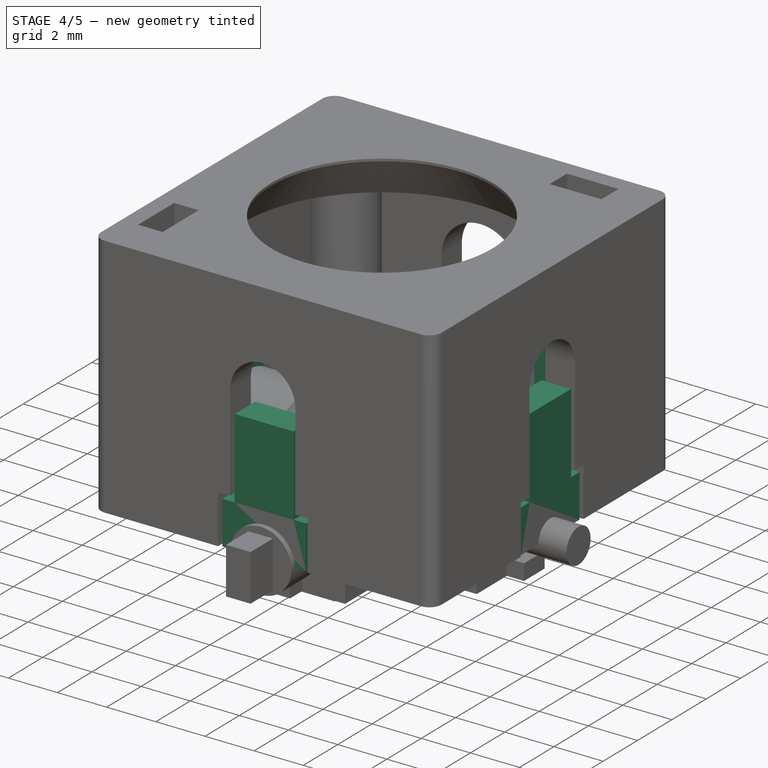
[diagram: stage 4 of 5 — iso view after this stage's code; geometry added in this stage tinted green]
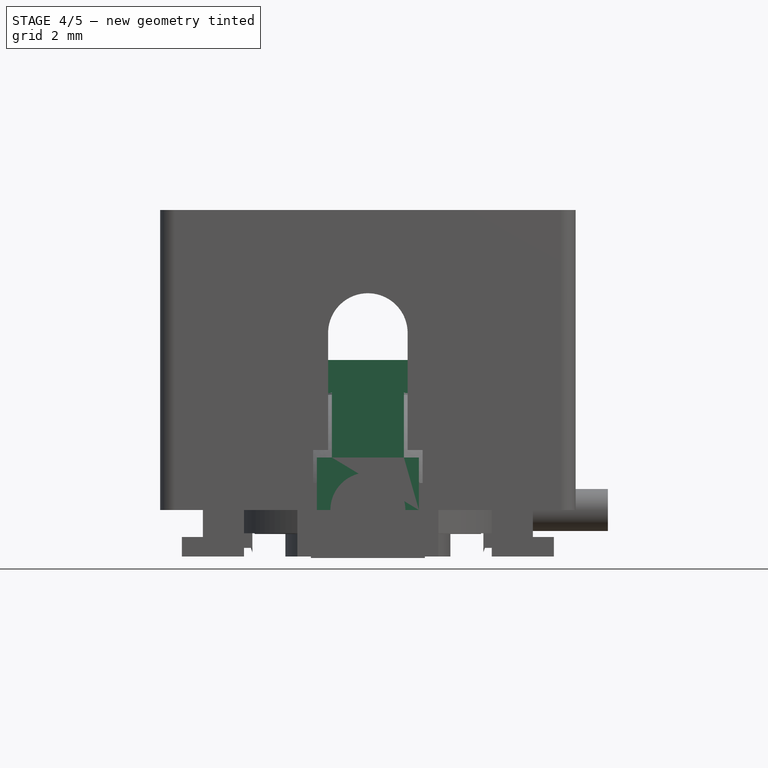
[diagram: stage 4 of 5 — front view after this stage's code; geometry added in this stage tinted green]
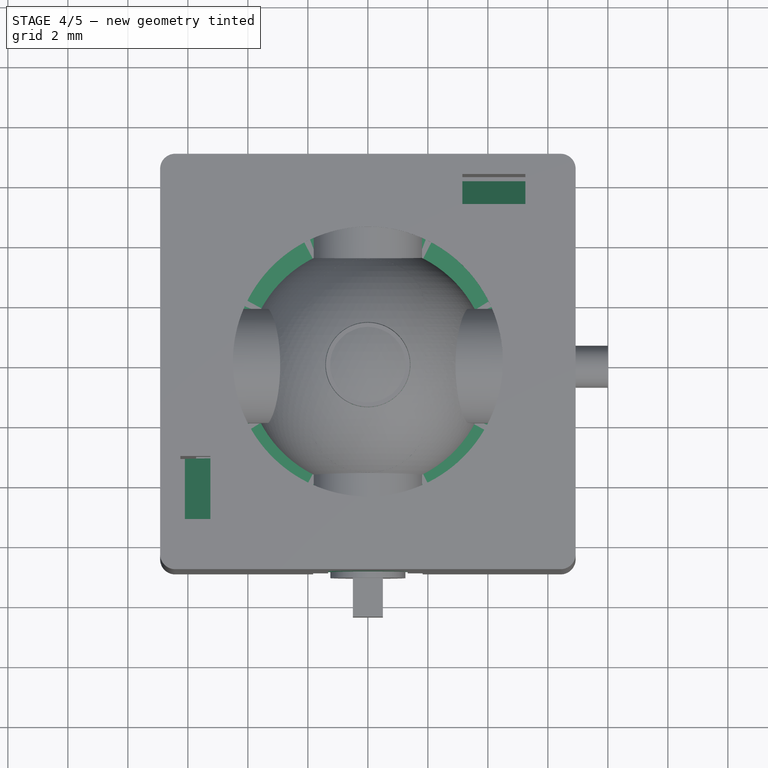
[diagram: stage 4 of 5 — top view after this stage's code; geometry added in this stage tinted green]
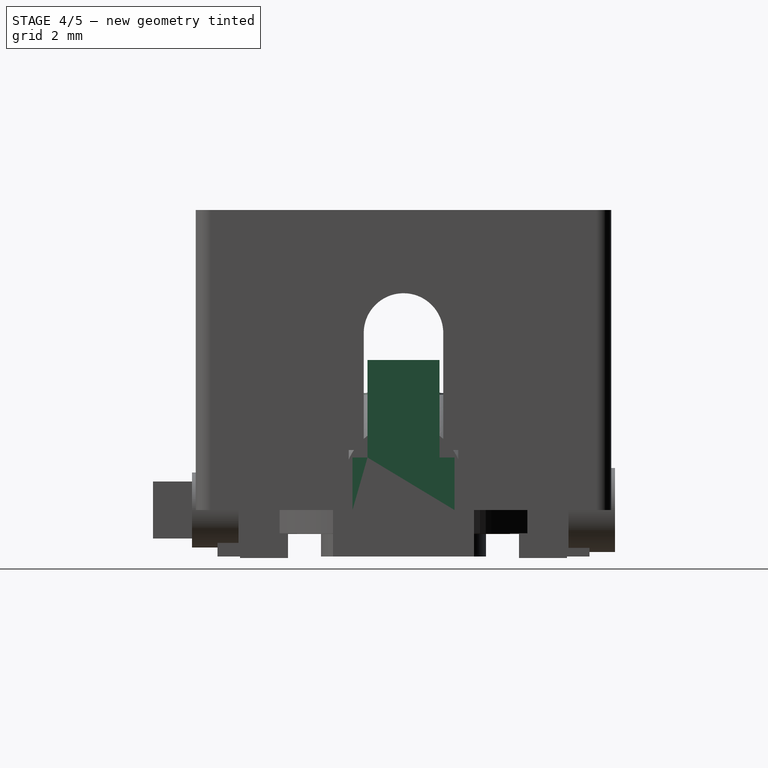
[diagram: stage 4 of 5 — right view after this stage's code; geometry added in this stage tinted green]
FEATURE [Sketcher::SketchObject] Sketch008
  ArcFitTolerance = 1e-06
  AttachmentSupport = -> [XY_Plane001]
  FullyConstrained = true
  MakeInternals = false
  MapMode = 5
  sketch-geometry (1):
    g0: Circle CenterX=0 CenterY=0 CenterZ=0 NormalX=0 NormalY=0 NormalZ=1 AngleXU=0 Radius=1.9
  constraints (2):
    c: Diameter(g0) = 3.8
    c: Coincident(g0,g-1)
FEATURE [Sketcher::SketchObject] Sketch009
  ArcFitTolerance = 1e-06
  AttachmentSupport = -> [XY_Plane001]
  FullyConstrained = true
  MakeInternals = false
  MapMode = 5
  expr: Constraints[4] = .Constraints.HL
  expr: Constraints[5] = .Constraints.hh
  sketch-geometry (10):
    g0: Circle CenterX=5.45 CenterY=-5.45 CenterZ=0 NormalX=0 NormalY=0 NormalZ=1 AngleXU=0 Radius=1
    g1: Circle CenterX=-5.45 CenterY=5.45 CenterZ=0 NormalX=0 NormalY=0 NormalZ=1 AngleXU=0 Radius=1
    g2: LineSegment StartX=-6.15 StartY=-3.15 StartZ=0 EndX=-6.15 EndY=-5.25 EndZ=0
    g3: LineSegment StartX=-6.15 StartY=-5.25 StartZ=0 EndX=-5.45 EndY=-5.25 EndZ=0
    g4: LineSegment StartX=-5.45 StartY=-5.25 StartZ=0 EndX=-5.45 EndY=-3.15 EndZ=0
    g5: LineSegment StartX=-5.45 StartY=-3.15 StartZ=0 EndX=-6.15 EndY=-3.15 EndZ=0
    g6: LineSegment StartX=3.15 StartY=6.15 StartZ=0 EndX=3.15 EndY=5.45 EndZ=0
    g7: LineSegment StartX=3.15 StartY=5.45 StartZ=0 EndX=5.25 EndY=5.45 EndZ=0
    g8: LineSegment StartX=5.25 StartY=5.45 StartZ=0 EndX=5.25 EndY=6.15 EndZ=0
    g9: LineSegment StartX=5.25 StartY=6.15 StartZ=0 EndX=3.15 EndY=6.15 EndZ=0
  constraints (30):
    c: DistanceY(g0,g-1) = 5.45  'hh'
    c: DistanceX(g-1,g0) = 5.45  'HL'
    c: Diameter(g0) = 2
    c: Equal(g1,g0)
    c: DistanceX(g1,g-1) = 5.45
    c: DistanceY(g-1,g1) = 5.45
    c: Coincident(g2,g3)
    c: Coincident(g3,g4)
    c: Coincident(g4,g5)
    c: Coincident(g5,g2)
    c: Vertical(g2)
    c: Vertical(g4)
    c: Horizontal(g3)
    c: Horizontal(g5)
    c: Coincident(g6,g7)
    c: Coincident(g7,g8)
    c: Coincident(g8,g9)
    c: Coincident(g9,g6)
    c: Vertical(g6)
    c: Vertical(g8)
    c: Horizontal(g7)
    c: Horizontal(g9)
    c: DistanceY(g2,g-1) = 5.25
    c: DistanceX(g3,g3) = 0.7
    c: DistanceY(g2,g2) = 2.1
    c: DistanceX(g2,g-1) = 6.15
    c: DistanceX(g9,g9) = 2.1
    c: DistanceY(g8,g8) = 0.7
    c: DistanceX(g-1,g8) = 5.25
    c: DistanceY(g-1,g8) = 6.15
FEATURE [Sketcher::SketchObject] Sketch010
  ArcFitTolerance = 1e-06
  AttachmentOffset = pos=(0,0,5.9) rot=(0,0,1;0rad)
  AttachmentSupport = -> [XY_Plane001]
  FullyConstrained = true
  MakeInternals = false
  MapMode = 5
  Placement = pos=(0,0,5.9) rot=(0,0,1;0rad)
  sketch-geometry (2):
    g0: ArcOfCircle CenterX=1.7e-15 CenterY=0 CenterZ=0 NormalX=0 NormalY=0 NormalZ=1 AngleXU=0 Radius=2.25 StartAngle=4.71239 EndAngle=7.85398
    g1: LineSegment StartX=1.7e-15 StartY=2.25 StartZ=0 EndX=1.7e-15 EndY=-2.25 EndZ=0
  constraints (6):
    c: Coincident(g0,g-1)
    c: Vertical(g1)
    c: Vertical(g1,g0)
    c: Coincident(g0,g1)
    c: Coincident(g0,g1)
    c: Radius(g0) = 2.25
FEATURE [Sketcher::SketchObject] Sketch011
  ArcFitTolerance = 1e-06
  AttachmentSupport = -> [XY_Plane001]
  FullyConstrained = true
  MakeInternals = false
  MapMode = 5
  expr: Constraints[10] = .Constraints.HL / 2
  expr: Constraints[11] = <<Sketch015>>.Constraints.DL
  sketch-geometry (4):
    g0: LineSegment StartX=-1.7 StartY=-6.85 StartZ=0 EndX=1.7 EndY=-6.85 EndZ=0
    g1: LineSegment StartX=1.7 StartY=-6.85 StartZ=0 EndX=1.7 EndY=-5.65 EndZ=0
    g2: LineSegment StartX=1.7 StartY=-5.65 StartZ=0 EndX=-1.7 EndY=-5.65 EndZ=0
    g3: LineSegment StartX=-1.7 StartY=-5.65 StartZ=0 EndX=-1.7 EndY=-6.85 EndZ=0
  constraints (12):
    c: Coincident(g0,g1)
    c: Coincident(g1,g2)
    c: Coincident(g2,g3)
    c: Coincident(g3,g0)
    c: Horizontal(g0)
    c: Horizontal(g2)
    c: Vertical(g1)
    c: Vertical(g3)
    c: DistanceX(g0,g0) = 3.4  'HL'
    c: DistanceY(g3,g3) = 1.2
    c: DistanceX(g0,g-1) = 1.7
    c: DistanceY(g2,g-1) = 5.65
FEATURE [Sketcher::SketchObject] Sketch012
  ArcFitTolerance = 1e-06
  AttachmentOffset = pos=(0,0,0.9) rot=(0,0,1;0rad)
  AttachmentSupport = -> [XY_Plane001]
  FullyConstrained = true
  MakeInternals = false
  MapMode = 5
  Placement = pos=(0,0,0.9) rot=(0,0,1;0rad)
  expr: .AttachmentOffset.Base.z = <<Pad004>>.Length
  sketch-geometry (2):
    g0: Circle CenterX=0 CenterY=0 CenterZ=0 NormalX=0 NormalY=0 NormalZ=1 AngleXU=0 Radius=2.67
    g1: Circle CenterX=0 CenterY=0 CenterZ=0 NormalX=0 NormalY=0 NormalZ=1 AngleXU=0 Radius=5
  constraints (4):
    c: Coincident(g0,g-1)
    c: Coincident(g1,g0)
    c: Diameter(g1) = 10
    c: Distance(g0,g1) = 2.33
FEATURE [PartDesign::Pocket] Pocket003
  BaseFeature = -> Pad004
  Direction = (0,0,-1)
  Length = 0.2
  Length2 = 5
  Profile = -> Sketch012
  ReferenceAxis = -> Sketch012 [N_Axis]
  Refine = true
  Suppressed = false
  Type = 0
FEATURE [PartDesign::Pad] Pad005
  BaseFeature = -> Pocket003
  Direction = (0,0,1)
  Length = 3.9
  Length2 = 10
  Profile = -> Sketch008
  ReferenceAxis = -> Sketch008 [N_Axis]
  Refine = true
  Suppressed = false
  Type = 0
  expr: Length = 3 mm + <<Pad004>>.Length
FEATURE [PartDesign::Groove] Groove
  Angle = 360
  Angle2 = 60
  Axis = (0,1,0)
  Base = (0,0,5.9)
  BaseFeature = -> Pad005
  Profile = -> Sketch010
  ReferenceAxis = -> Sketch010 [V_Axis]
  Refine = true
  Suppressed = false
  Type = 0
FEATURE [Sketcher::SketchObject] Sketch013
  ArcFitTolerance = 1e-06
  AttachmentSupport = -> [XY_Plane001]
  FullyConstrained = true
  MakeInternals = false
  MapMode = 5
  sketch-geometry (6):
    g0: LineSegment StartX=-5.45 StartY=-3.15 StartZ=0 EndX=-5.45 EndY=-5.25 EndZ=0
    g1: LineSegment StartX=-5.45 StartY=-5.25 StartZ=0 EndX=-3.45 EndY=-5.25 EndZ=0
    g2: LineSegment StartX=-3.45 StartY=-5.25 StartZ=0 EndX=-3.45 EndY=-4.5 EndZ=0
    g3: LineSegment StartX=-3.45 StartY=-4.5 StartZ=0 EndX=-4.35 EndY=-4.5 EndZ=0
    g4: LineSegment StartX=-4.35 StartY=-4.5 StartZ=0 EndX=-4.35 EndY=-3.15 EndZ=0
    g5: LineSegment StartX=-4.35 StartY=-3.15 StartZ=0 EndX=-5.45 EndY=-3.15 EndZ=0
  constraints (19):
    c: Vertical(g0)
    c: Coincident(g1,g0)
    c: Horizontal(g1)
    c: Coincident(g2,g1)
    c: Vertical(g2)
    c: Coincident(g3,g2)
    c: Horizontal(g3)
    c: Coincident(g4,g3)
    c: Vertical(g4)
    c: Coincident(g5,g4)
    c: Coincident(g5,g0)
    c: Horizontal(g5)
    c: DistanceX(g1,g1) = 2
    c: DistanceY(g2,g2) = 0.75
    c: DistanceY(g0,g0) = 2.1
    c: DistanceX(g5,g5) = 1.1
    c: DistanceY(g4,g4) = 1.35
    c: DistanceX(g0,g-1) = 5.45
    c: DistanceY(g0,g-1) = 5.25
FEATURE [PartDesign::Plane] DatumPlane
  AttachmentOffset = pos=(0,0,0) rot=(0,1,0;0.785398rad)
  AttachmentSupport = -> [YZ_Plane001]
  Length = 82.6027
  MapMode = 5
  Placement = pos=(0,0,0) rot=(0.281085,0.678598,0.678598;2.59356rad)
  ResizeMode = 0
  Width = 61.8921
FEATURE [Sketcher::SketchObject] Sketch014
  ArcFitTolerance = 1e-06
  AttachmentOffset = pos=(0,0,5.25) rot=(0,0,1;0rad)
  AttachmentSupport = -> [XZ_Plane001]
  FullyConstrained = true
  MakeInternals = false
  MapMode = 5
  Placement = pos=(0,-5.25,1.2e-15) rot=(1,0,0;1.5708rad)
  sketch-geometry (5):
    g0: LineSegment StartX=-4.35 StartY=4.15 StartZ=0 EndX=-4.35 EndY=5.5 EndZ=0
    g1: LineSegment StartX=-4.35 StartY=5.5 StartZ=0 EndX=-5.175 EndY=5.5 EndZ=0
    g2: LineSegment StartX=-5.175 StartY=5.5 StartZ=0 EndX=-6.1 EndY=4.65 EndZ=0
    g3: LineSegment StartX=-6.1 StartY=4.65 StartZ=0 EndX=-6.1 EndY=4.15 EndZ=0
    g4: LineSegment StartX=-6.1 StartY=4.15 StartZ=0 EndX=-4.35 EndY=4.15 EndZ=0
  constraints (15):
    c: Vertical(g0)
    c: Coincident(g1,g0)
    c: Horizontal(g1)
    c: Coincident(g2,g1)
    c: Coincident(g3,g2)
    c: Vertical(g3)
    c: Coincident(g4,g3)
    c: Coincident(g4,g0)
    c: Horizontal(g4)
    c: DistanceX(g1,g1) = 0.825
    c: DistanceY(g3,g3) = 0.5
    c: DistanceY(g0,g0) = 1.35
    c: DistanceX(g4,g4) = 1.75
    c: DistanceY(g-1,g0) = 4.15
    c: DistanceX(g0,g-1) = 4.35
FEATURE [Sketcher::SketchObject] Sketch015
  ArcFitTolerance = 1e-06
  AttachmentSupport = -> [XY_Plane001]
  FullyConstrained = true
  MakeInternals = false
  MapMode = 5
  expr: .Constraints.DL = 11.3 / 2
  expr: Constraints[8] = .Constraints.HL / 2
  sketch-geometry (4):
    g0: LineSegment StartX=-6.85 StartY=1.2 StartZ=0 EndX=-6.85 EndY=-1.2 EndZ=0
    g1: LineSegment StartX=-6.85 StartY=-1.2 StartZ=0 EndX=-5.65 EndY=-1.2 EndZ=0
    g2: LineSegment StartX=-5.65 StartY=-1.2 StartZ=0 EndX=-5.65 EndY=1.2 EndZ=0
    g3: LineSegment StartX=-5.65 StartY=1.2 StartZ=0 EndX=-6.85 EndY=1.2 EndZ=0
  constraints (13):
    c: Coincident(g0,g1)
    c: Coincident(g1,g2)
    c: Coincident(g2,g3)
    c: Coincident(g3,g0)
    c: Vertical(g0)
    c: Vertical(g2)
    c: Horizontal(g1)
    c: Horizontal(g3)
    c: DistanceY(g0,g-1) = 1.2
    c: DistanceX(g1,g-1) = 5.65  'DL'
    c: DistanceY(g0,g0) = 2.4  'HL'
    c: DistanceX(g1,g1) = 1.2
    c: DistanceX(g0,g-1) = 6.85
FEATURE [PartDesign::Chamfer] Chamfer
  Angle = 45
  Base = -> Groove [Edge21]
  BaseFeature = -> Groove
  ChamferType = 1
  FlipDirection = false
  Refine = true
  Size = 1.5
  Size2 = 0.5
  SupportTransform = false
  Suppressed = false
  UseAllEdges = false
FEATURE [PartDesign::Pocket] Pocket002
  BaseFeature = -> Chamfer
  Direction = (0,0,-1)
  Length = 5
  Length2 = 5
  Midplane = true
  Profile = -> Sketch009
  ReferenceAxis = -> Sketch009 [N_Axis]
  Refine = true
  Suppressed = false
  Type = 1
FEATURE [PartDesign::Pad] Pad007
  BaseFeature = -> Pocket002
  Direction = (0,0,1)
  Length = 4.9
  Length2 = 10
  Profile = -> Sketch013
  ReferenceAxis = -> Sketch013 [N_Axis]
  Refine = true
  Suppressed = false
  Type = 0
FEATURE [PartDesign::Pad] Pad008
  BaseFeature = -> Pad007
  Direction = (0,-1,2e-16)
  Length = 2.1
  Length2 = 10
  Profile = -> Sketch014
  ReferenceAxis = -> Sketch014 [N_Axis]
  Refine = true
  Reversed = true
  Suppressed = false
  Type = 0
FEATURE [PartDesign::Mirrored] Mirrored
  BaseFeature = -> Pad008
  MirrorPlane = -> DatumPlane
  Originals = -> [Pad007,Pad008]
  Refine = true
  Suppressed = false
  TransformMode = 0
FEATURE [PartDesign::Pad] Pad009
  BaseFeature = -> Mirrored
  Direction = (0,0,1)
  Length = 5
  Length2 = 10
  Profile = -> Sketch015
  ReferenceAxis = -> Sketch015 [N_Axis]
  Refine = true
  Suppressed = false
  Type = 0
FEATURE [Sketcher::SketchObject] Sketch016
  ArcFitTolerance = 1e-06
  AttachmentSupport = -> [XZ_Plane001]
  FullyConstrained = true
  MakeInternals = false
  MapMode = 5
  Placement = pos=(0,0,0) rot=(1,0,0;1.5708rad)
  sketch-geometry (1):
    g0: Circle CenterX=0 CenterY=5.9 CenterZ=0 NormalX=0 NormalY=0 NormalZ=1 AngleXU=0 Radius=1.5
  constraints (3):
    c: PointOnObject(g0,g-2)
    c: DistanceY(g-1,g0) = 5.9
    c: Diameter(g0) = 3
FEATURE [Sketcher::SketchObject] Sketch017
  ArcFitTolerance = 1e-06
  AttachmentSupport = -> [XZ_Plane001]
  FullyConstrained = true
  MakeInternals = false
  MapMode = 5
  Placement = pos=(0,0,0) rot=(1,0,0;1.5708rad)
  expr: Constraints[2] = 2.8 + 0.1
  sketch-geometry (1):
    g0: Circle CenterX=0 CenterY=5.9 CenterZ=0 NormalX=0 NormalY=0 NormalZ=1 AngleXU=0 Radius=1.45
  constraints (3):
    c: PointOnObject(g0,g-2)
    c: DistanceY(g-1,g0) = 5.9
    c: Diameter(g0) = 2.9
FEATURE [Sketcher::SketchObject] Sketch018
  ArcFitTolerance = 1e-06
  AttachmentSupport = -> [YZ_Plane001]
  FullyConstrained = true
  MakeInternals = false
  MapMode = 5
  Placement = pos=(0,0,0) rot=(0.57735,0.57735,0.57735;2.0944rad)
  sketch-geometry (1):
    g0: Circle CenterX=0 CenterY=5.9 CenterZ=0 NormalX=0 NormalY=0 NormalZ=1 AngleXU=0 Radius=1.5
  constraints (3):
    c: PointOnObject(g0,g-2)
    c: DistanceY(g-1,g0) = 5.9
    c: Diameter(g0) = 3
FEATURE [Sketcher::SketchObject] Sketch019
  ArcFitTolerance = 1e-06
  AttachmentSupport = -> [YZ_Plane001]
  FullyConstrained = true
  MakeInternals = false
  MapMode = 5
  Placement = pos=(0,0,0) rot=(0.57735,0.57735,0.57735;2.0944rad)
  sketch-geometry (1):
    g0: Circle CenterX=0 CenterY=5.9 CenterZ=0 NormalX=0 NormalY=0 NormalZ=1 AngleXU=0 Radius=1.5
  constraints (3):
    c: PointOnObject(g0,g-2)
    c: DistanceY(g-1,g0) = 5.9
    c: Diameter(g0) = 3
FEATURE [Sketcher::SketchObject] Sketch020
  ArcFitTolerance = 1e-06
  AttachmentSupport = -> [XY_Plane001]
  FullyConstrained = true
  MakeInternals = false
  MapMode = 5
  expr: Constraints[10] = .Constraints.HL / 2
  sketch-geometry (4):
    g0: LineSegment StartX=-6.225 StartY=0.6 StartZ=0 EndX=-6.225 EndY=-0.6 EndZ=0
    g1: LineSegment StartX=-6.225 StartY=-0.6 StartZ=0 EndX=-5.525 EndY=-0.6 EndZ=0
    g2: LineSegment StartX=-5.525 StartY=-0.6 StartZ=0 EndX=-5.525 EndY=0.6 EndZ=0
    g3: LineSegment StartX=-5.525 StartY=0.6 StartZ=0 EndX=-6.225 EndY=0.6 EndZ=0
  constraints (13):
    c: Coincident(g0,g1)
    c: Coincident(g1,g2)
    c: Coincident(g2,g3)
    c: Coincident(g3,g0)
    c: Vertical(g0)
    c: Vertical(g2)
    c: Horizontal(g1)
    c: Horizontal(g3)
    c: DistanceX(g1,g1) = 0.7
    c: DistanceY(g0,g0) = 1.2  'HL'
    c: DistanceY(g0,g-1) = 0.6
    c: DistanceX(g0,g-1) = 6.225
    c: DistanceX(g1,g-1) = 5.525
FEATURE [Sketcher::SketchObject] Sketch021
  ArcFitTolerance = 1e-06
  AttachmentSupport = -> [XY_Plane001]
  FullyConstrained = true
  MakeInternals = false
  MapMode = 5
  expr: Constraints[10] = <<Sketch015>>.Constraints.DL
  expr: Constraints[9] = .Constraints.LL / 2
  sketch-geometry (4):
    g0: LineSegment StartX=-1.425 StartY=6.85 StartZ=0 EndX=-1.425 EndY=5.65 EndZ=0
    g1: LineSegment StartX=-1.425 StartY=5.65 StartZ=0 EndX=1.425 EndY=5.65 EndZ=0
    g2: LineSegment StartX=1.425 StartY=5.65 StartZ=0 EndX=1.425 EndY=6.85 EndZ=0
    g3: LineSegment StartX=1.425 StartY=6.85 StartZ=0 EndX=-1.425 EndY=6.85 EndZ=0
  constraints (13):
    c: Coincident(g0,g1)
    c: Coincident(g1,g2)
    c: Coincident(g2,g3)
    c: Coincident(g3,g0)
    c: Vertical(g0)
    c: Vertical(g2)
    c: Horizontal(g1)
    c: Horizontal(g3)
    c: DistanceX(g3,g3) = 2.85  'LL'
    c: DistanceX(g0,g-1) = 1.425
    c: DistanceY(g-1,g0) = 5.65
    c: DistanceY(g0,g0) = 1.2
    c: DistanceY(g-1,g0) = 6.85
FEATURE [PartDesign::Pad] Pad010
  BaseFeature = -> Pad009
  Direction = (0,0,1)
  Length = 5
  Length2 = 10
  Profile = -> Sketch021
  ReferenceAxis = -> Sketch021 [N_Axis]
  Refine = true
  Suppressed = false
  Type = 0
  expr: Length = <<Pad009>>.Length
FEATURE [PartDesign::PolarPattern] PolarPattern002
  Angle = 180
  Axis = -> Sketch015 [N_Axis]
  BaseFeature = -> Pad010
  Mode = 0
  Occurrences = 3
  Offset = 120
  Originals = -> [Pad009]
  Refine = true
  Suppressed = false
  TransformMode = 0
FEATURE [PartDesign::Pad] Pad006
  BaseFeature = -> PolarPattern002
  Direction = (0,0,1)
  Length = 1.75
  Length2 = 10
  Profile = -> Sketch011
  ReferenceAxis = -> Sketch011 [N_Axis]
  Refine = true
  Suppressed = false
  Type = 0
FEATURE [PartDesign::PolarPattern] PolarPattern
  Angle = 360
  Axis = -> Sketch011 [N_Axis]
  BaseFeature = -> Pad006
  Mode = 0
  Occurrences = 4
  Offset = 120
  Originals = -> [Pad006]
  Refine = true
  Suppressed = false
  TransformMode = 0
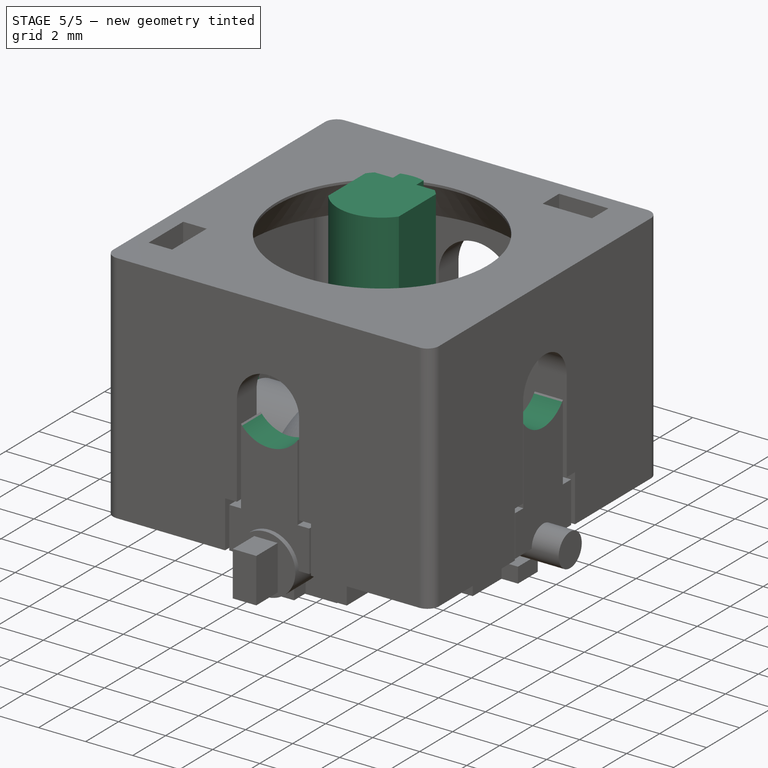
[diagram: stage 5 of 5 — iso view after this stage's code; geometry added in this stage tinted green]
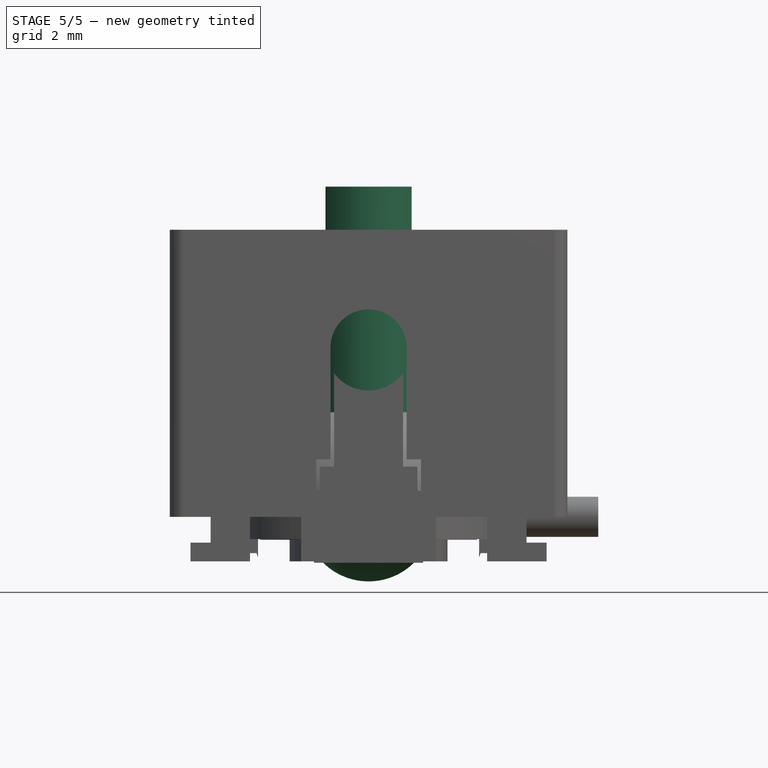
[diagram: stage 5 of 5 — front view after this stage's code; geometry added in this stage tinted green]
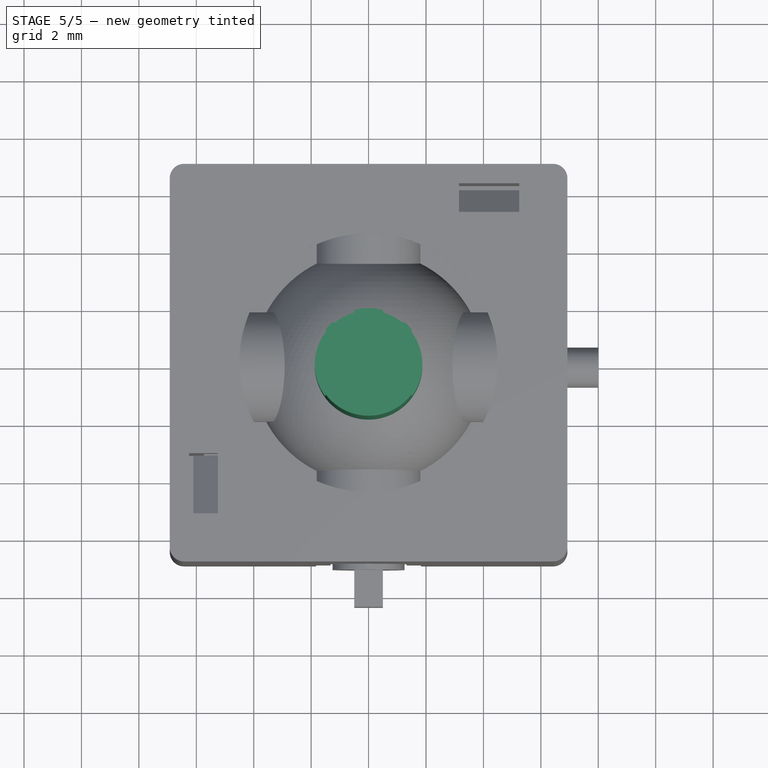
[diagram: stage 5 of 5 — top view after this stage's code; geometry added in this stage tinted green]
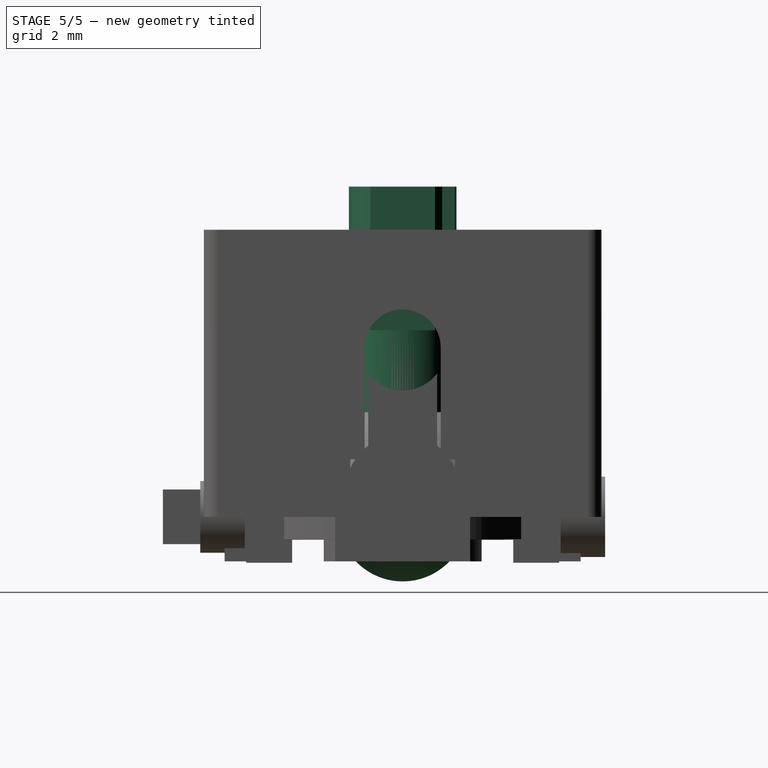
[diagram: stage 5 of 5 — right view after this stage's code; geometry added in this stage tinted green]
FEATURE [Sketcher::SketchObject] Sketch
  ArcFitTolerance = 1e-06
  AttachmentSupport = -> [XY_Plane]
  FullyConstrained = true
  MakeInternals = false
  MapMode = 5
  sketch-geometry (2):
    g0: ArcOfCircle CenterX=1.7e-15 CenterY=0 CenterZ=0 NormalX=0 NormalY=0 NormalZ=1 AngleXU=0 Radius=2.25 StartAngle=4.71239 EndAngle=7.85398
    g1: LineSegment StartX=1.7e-15 StartY=2.25 StartZ=0 EndX=1.7e-15 EndY=-2.25 EndZ=0
  constraints (6):
    c: Coincident(g0,g-1)
    c: Vertical(g1)
    c: Vertical(g1,g0)
    c: Coincident(g0,g1)
    c: Coincident(g0,g1)
    c: Radius(g0) = 2.25  'R'
FEATURE [Sketcher::SketchObject] Sketch001
  ArcFitTolerance = 1e-06
  AttachmentSupport = -> [XY_Plane]
  FullyConstrained = true
  MakeInternals = false
  MapMode = 5
  sketch-geometry (1):
    g0: Circle CenterX=0 CenterY=0 CenterZ=0 NormalX=0 NormalY=0 NormalZ=1 AngleXU=0 Radius=1.875
  constraints (2):
    c: Coincident(g0,g-1)
    c: Diameter(g0) = 3.75
FEATURE [PartDesign::Pad] Pad  label="Stem1"
  Direction = (0,0,1)
  Length = 6.5
  Length2 = 10
  Profile = -> Sketch001
  ReferenceAxis = -> Sketch001 [N_Axis]
  Refine = true
  Suppressed = false
  Type = 0
FEATURE [Sketcher::SketchObject] Sketch002
  ArcFitTolerance = 1e-06
  AttachmentSupport = -> [YZ_Plane]
  FullyConstrained = true
  MakeInternals = false
  MapMode = 5
  Placement = pos=(0,0,0) rot=(0.57735,0.57735,0.57735;2.0944rad)
  expr: Constraints[1] = 1.35 * 2
  sketch-geometry (1):
    g0: Circle CenterX=0 CenterY=0 CenterZ=0 NormalX=0 NormalY=0 NormalZ=1 AngleXU=0 Radius=1.35
  constraints (2):
    c: Coincident(g0,g-1)
    c: Diameter(g0) = 2.7
FEATURE [Spreadsheet::Sheet] Spreadsheet  label="Note"
  cells = A1='stem sphere v1; B1=2.2; C1='new; D1=2.25
FEATURE [Sketcher::SketchObject] Sketch003
  ArcFitTolerance = 1e-06
  AttachmentOffset = pos=(0,0,6.5) rot=(0,0,1;0rad)
  AttachmentSupport = -> [XY_Plane]
  FullyConstrained = true
  MakeInternals = false
  MapMode = 5
  Placement = pos=(0,0,6.5) rot=(0,0,1;0rad)
  expr: .AttachmentOffset.Base.z = <<Stem1>>.Length
  sketch-geometry (10):
    g0: ArcOfCircle CenterX=0 CenterY=0 CenterZ=0 NormalX=0 NormalY=0 NormalZ=1 AngleXU=0 Radius=1.875 StartAngle=0.643501 EndAngle=0.823212
    g1: LineSegment StartX=-1.5 StartY=1.125 StartZ=0 EndX=-1.5 EndY=-1.125 EndZ=0
    g2: LineSegment StartX=1.5 StartY=1.125 StartZ=0 EndX=1.5 EndY=-1.125 EndZ=0
    g3: LineSegment StartX=-1.27475 StartY=1.375 StartZ=0 EndX=-0.5 EndY=1.375 EndZ=0
    g4: LineSegment StartX=-0.5 StartY=1.8071 StartZ=0 EndX=-0.5 EndY=1.375 EndZ=0
    g5: ArcOfCircle CenterX=0 CenterY=0 CenterZ=0 NormalX=0 NormalY=0 NormalZ=1 AngleXU=0 Radius=1.875 StartAngle=3.78509 EndAngle=5.63968
    g6: ArcOfCircle CenterX=0 CenterY=0 CenterZ=0 NormalX=0 NormalY=0 NormalZ=1 AngleXU=0 Radius=1.875 StartAngle=2.31838 EndAngle=2.49809
    g7: LineSegment StartX=0.5 StartY=1.8071 StartZ=0 EndX=0.5 EndY=1.375 EndZ=0
    g8: ArcOfCircle CenterX=0 CenterY=0 CenterZ=0 NormalX=0 NormalY=0 NormalZ=1 AngleXU=0 Radius=1.875 StartAngle=1.30086 EndAngle=1.84073
    g9: LineSegment StartX=0.5 StartY=1.375 StartZ=0 EndX=1.27475 EndY=1.375 EndZ=0
  constraints (30):
    c: Coincident(g0,g-1)
    c: Diameter(g0) = 3.75
    c: Vertical(g1)
    c: Vertical(g2)
    c: DistanceX(g-1,g2) = 1.5
    c: Horizontal(g3)
    c: Vertical(g4)
    c: DistanceX(g4,g-1) = 0.5
    c: Coincident(g5,g2)
    c: Coincident(g0,g2)
    c: Equal(g0,g5)
    c: Coincident(g0,g5)
    c: Coincident(g1,g5)
    c: Coincident(g1,g6)
    c: DistanceX(g6,g-1) = 1.5
    c: Equal(g0,g6)
    c: Coincident(g0,g6)
    c: Vertical(g7)
    c: DistanceX(g-1,g7) = 0.5
    c: Equal(g0,g8)
    c: Coincident(g0,g8)
    c: Coincident(g9,g0)
    c: Coincident(g4,g3)
    c: Coincident(g3,g6)
    c: DistanceY(g-1,g3) = 1.375
    c: Horizontal(g3,g7)
    c: Horizontal(g9)
    c: Coincident(g7,g9)
    c: Coincident(g7,g8)
    c: Coincident(g4,g8)
FEATURE [PartDesign::Pad] Pad002  label="Stem2"
  BaseFeature = -> Pad
  Direction = (0,0,1)
  Length = 5
  Length2 = 10
  Profile = -> Sketch003
  ReferenceAxis = -> Sketch003 [N_Axis]
  Refine = true
  Suppressed = false
  Type = 0
FEATURE [PartDesign::Pad] Pad001  label="Raxis"
  BaseFeature = -> Pad002
  Direction = (1,0,0)
  Length = 7.85
  Length2 = 10
  Midplane = true
  Profile = -> Sketch002
  ReferenceAxis = -> Sketch002 [N_Axis]
  Refine = true
  Suppressed = false
  Type = 0
FEATURE [Sketcher::SketchObject] Sketch004
  ArcFitTolerance = 1e-06
  AttachmentSupport = -> [XZ_Plane]
  FullyConstrained = true
  MakeInternals = false
  MapMode = 5
  Placement = pos=(0,0,0) rot=(1,0,0;1.5708rad)
  expr: Constraints[2] = <<Raxis>>.Length
  expr: Constraints[3] = <<Raxis>>.Length / 2
  sketch-geometry (7):
    g0: LineSegment [constr] StartX=-3.925 StartY=0 StartZ=0 EndX=3.925 EndY=0 EndZ=0
    g1: LineSegment StartX=-3.925 StartY=0 StartZ=0 EndX=-3.925 EndY=-3 EndZ=0
    g2: LineSegment StartX=-3.925 StartY=0 StartZ=0 EndX=-2.71256 EndY=-0.7 EndZ=0
    g3: LineSegment StartX=3.925 StartY=0 StartZ=0 EndX=3.925 EndY=-3 EndZ=0
    g4: LineSegment StartX=3.925 StartY=0 StartZ=0 EndX=2.71256 EndY=-0.7 EndZ=0
    g5: LineSegment StartX=-2.71256 StartY=-0.7 StartZ=0 EndX=2.71256 EndY=-0.7 EndZ=0
    g6: LineSegment StartX=-3.925 StartY=-3 StartZ=0 EndX=3.925 EndY=-3 EndZ=0
  constraints (20):
    c: PointOnObject(g0,g-1)
    c: PointOnObject(g0,g-1)
    c: DistanceX(g0,g0) = 7.85
    c: DistanceX(g0,g-1) = 3.925
    c: Coincident(g1,g0)
    c: Vertical(g1)
    c: Coincident(g2,g0)
    c: Vertical(g3)
    c: Coincident(g0,g3)
    c: Coincident(g0,g4)
    c: Horizontal(g2,g4)
    c: DistanceY(g1,g1) = 3
    c: Angle(g1,g2) = 1.0472
    c: Coincident(g5,g2)
    c: Coincident(g5,g4)
    c: DistanceY(g2,g-1) = 0.7
    c: Coincident(g6,g1)
    c: Coincident(g6,g3)
    c: Horizontal(g6)
    c: Angle(g4,g3) = 1.0472
FEATURE [PartDesign::Pocket] Pocket  label="RaxisCut"
  BaseFeature = -> Pad001
  Direction = (0,1,-2e-16)
  Length = 5
  Length2 = 5
  Midplane = true
  Profile = -> Sketch004
  ReferenceAxis = -> Sketch004 [N_Axis]
  Refine = true
  Suppressed = false
  Type = 1
FEATURE [PartDesign::Revolution] Revolution  label="Sphere"
  Angle = 360
  Angle2 = 60
  Axis = (0,1,0)
  Base = (0,0,0)
  BaseFeature = -> Pocket
  Profile = -> Sketch
  ReferenceAxis = -> Sketch [V_Axis]
  Refine = true
  Reversed = true
  Suppressed = false
  Type = 0
FEATURE [Sketcher::SketchObject] Sketch005
  ArcFitTolerance = 1e-06
  AttachmentSupport = -> [XZ_Plane]
  FullyConstrained = true
  MakeInternals = false
  MapMode = 5
  Placement = pos=(0,0,0) rot=(1,0,0;1.5708rad)
  sketch-geometry (4):
    g0: LineSegment StartX=-0.675 StartY=1.025 StartZ=0 EndX=-0.675 EndY=-0.675 EndZ=0
    g1: LineSegment StartX=-0.675 StartY=-0.675 StartZ=0 EndX=0.675 EndY=-0.675 EndZ=0
    g2: LineSegment StartX=0.675 StartY=-0.675 StartZ=0 EndX=0.675 EndY=1.025 EndZ=0
    g3: LineSegment StartX=0.675 StartY=1.025 StartZ=0 EndX=-0.675 EndY=1.025 EndZ=0
  constraints (12):
    c: Coincident(g0,g1)
    c: Coincident(g1,g2)
    c: Coincident(g2,g3)
    c: Coincident(g3,g0)
    c: Vertical(g0)
    c: Vertical(g2)
    c: Horizontal(g1)
    c: Horizontal(g3)
    c: DistanceX(g3,g3) = 1.35
    c: DistanceX(g0,g-1) = 0.675
    c: DistanceY(g0,g0) = 1.7
    c: DistanceY(g-1,g0) = 1.025
FEATURE [PartDesign::Pad] Pad003  label="Peg"
  BaseFeature = -> Revolution
  Direction = (0,-1,2e-16)
  Length = 2.8
  Length2 = 10
  Profile = -> Sketch005
  ReferenceAxis = -> Sketch005 [N_Axis]
  Refine = true
  Suppressed = false
  Type = 0
FEATURE [Sketcher::SketchObject] Sketch006
  ArcFitTolerance = 1e-06
  AttachmentSupport = -> [YZ_Plane]
  FullyConstrained = true
  MakeInternals = false
  MapMode = 5
  Placement = pos=(0,0,0) rot=(0.57735,0.57735,0.57735;2.0944rad)
  expr: Constraints[7] = <<Peg>>.Length
  sketch-geometry (4):
    g0: LineSegment StartX=-2.8 StartY=0.15 StartZ=0 EndX=-3.06214 EndY=0.15 EndZ=0
    g1: LineSegment StartX=-3.06214 StartY=0.15 StartZ=0 EndX=-3.06214 EndY=1.35 EndZ=0
    g2: LineSegment StartX=-3.06214 StartY=1.35 StartZ=0 EndX=-2.46214 EndY=1.35 EndZ=0
    g3: ArcOfCircle CenterX=-0.5 CenterY=0.15 CenterZ=0 NormalX=0 NormalY=0 NormalZ=1 AngleXU=0 Radius=2.3 StartAngle=2.5927 EndAngle=3.14159
  constraints (13):
    c: Horizontal(g0)
    c: Coincident(g1,g0)
    c: Vertical(g1)
    c: Coincident(g2,g1)
    c: Horizontal(g2)
    c: Coincident(g3,g0)
    c: Coincident(g3,g2)
    c: DistanceX(g0,g-1) = 2.8
    c: DistanceY(g1,g1) = 1.2
    c: Horizontal(g3,g0)
    c: DistanceX(g2,g2) = 0.6
    c: Radius(g3) = 2.3
    c: DistanceY(g-1,g0) = 0.15
FEATURE [PartDesign::Pocket] Pocket001  label="PegCut"
  BaseFeature = -> Pad003
  Direction = (-1,0,0)
  Length = 5
  Length2 = 5
  Midplane = true
  Profile = -> Sketch006
  ReferenceAxis = -> Sketch006 [N_Axis]
  Refine = true
  Suppressed = false
  Type = 1
FEATURE [PartDesign::Pocket] Pocket004  label="Y-"
  BaseFeature = -> PolarPattern
  Direction = (0,1,-2e-16)
  Length = 5
  Length2 = 5
  Profile = -> Sketch016
  ReferenceAxis = -> Sketch016 [N_Axis]
  Refine = true
  Reversed = true
  Suppressed = false
  Type = 1
FEATURE [PartDesign::Pocket] Pocket005  label="Y+"
  BaseFeature = -> Pocket004
  Direction = (0,1,-2e-16)
  Length = 5
  Length2 = 5
  Profile = -> Sketch017
  ReferenceAxis = -> Sketch017 [N_Axis]
  Refine = true
  Suppressed = false
  Type = 1
FEATURE [PartDesign::Pocket] Pocket006  label="X-"
  BaseFeature = -> Pocket005
  Direction = (-1,0,0)
  Length = 5
  Length2 = 5
  Profile = -> Sketch018
  ReferenceAxis = -> Sketch018 [N_Axis]
  Refine = true
  Suppressed = false
  Type = 1
FEATURE [PartDesign::Pocket] Pocket007  label="X+"
  BaseFeature = -> Pocket006
  Direction = (-1,0,0)
  Length = 5
  Length2 = 5
  Profile = -> Sketch019
  ReferenceAxis = -> Sketch019 [N_Axis]
  Refine = true
  Reversed = true
  Suppressed = false
  Type = 1
FEATURE [PartDesign::Pocket] Pocket008  label="StabGuideS"
  BaseFeature = -> Pocket007
  Direction = (0,0,-1)
  Length = 4
  Length2 = 5
  Profile = -> Sketch020
  ReferenceAxis = -> Sketch020 [N_Axis]
  Refine = true
  Reversed = true
  Suppressed = false
  Type = 0
FEATURE [PartDesign::PolarPattern] PolarPattern001
  Angle = 360
  Axis = -> Sketch020 [N_Axis]
  BaseFeature = -> Pocket008
  Mode = 0
  Occurrences = 4
  Offset = 120
  Originals = -> [Pocket008]
  Refine = true
  Suppressed = false
  TransformMode = 0
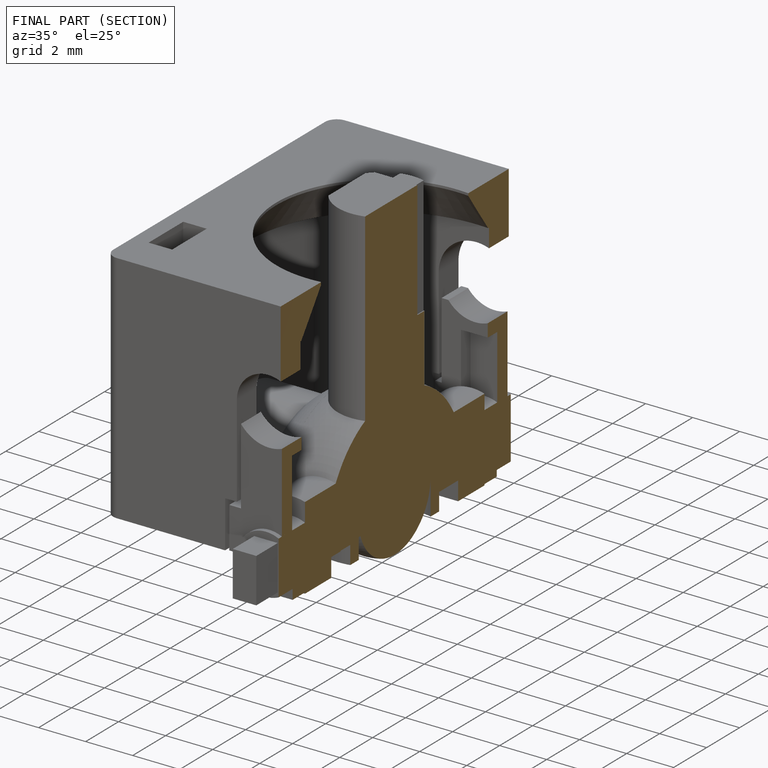
[diagram: finished part — half-section view (interior)]
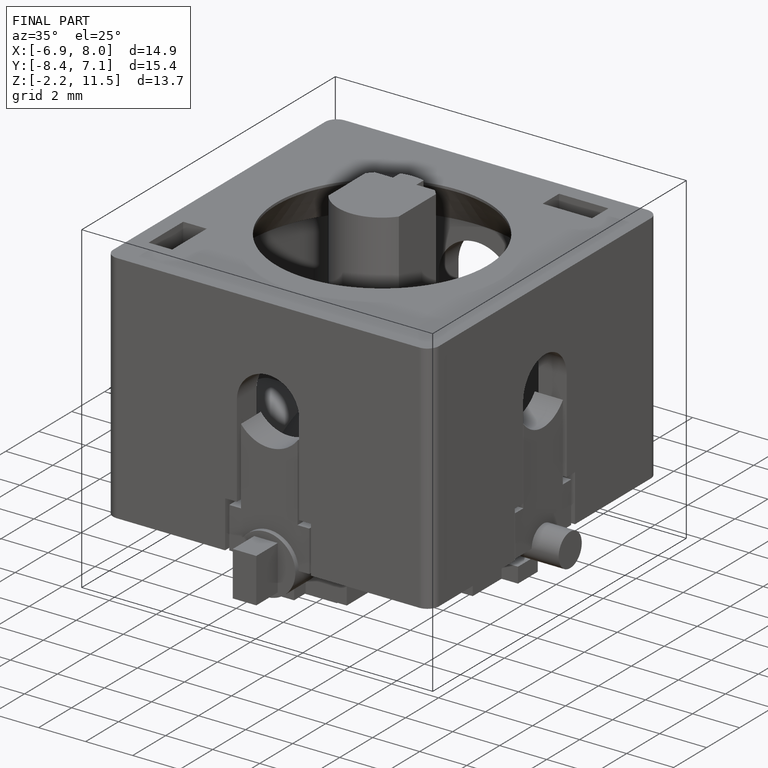
[diagram: finished part — iso view with bounding-box wireframe]
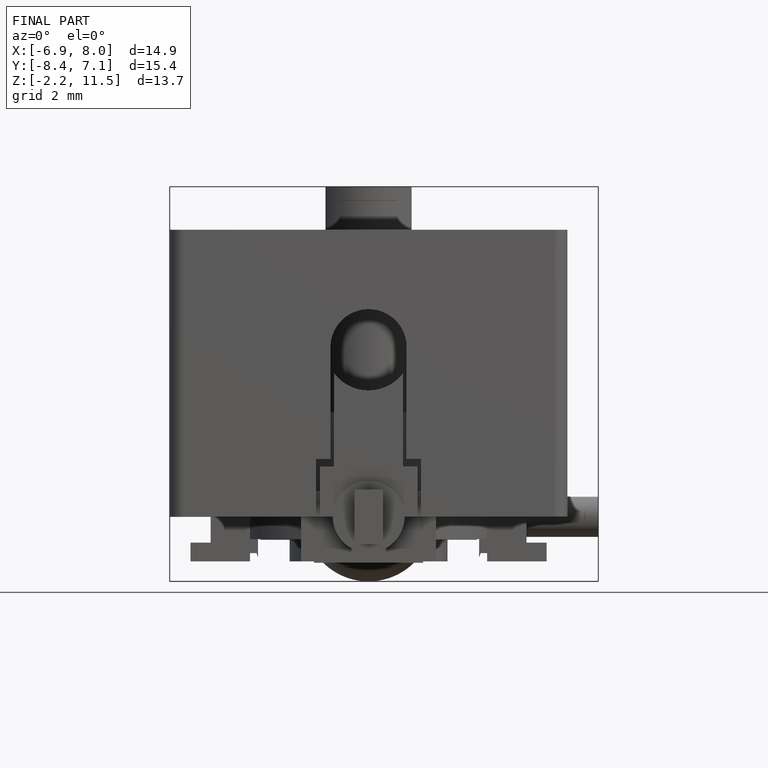
[diagram: finished part — front view with bounding-box wireframe]
